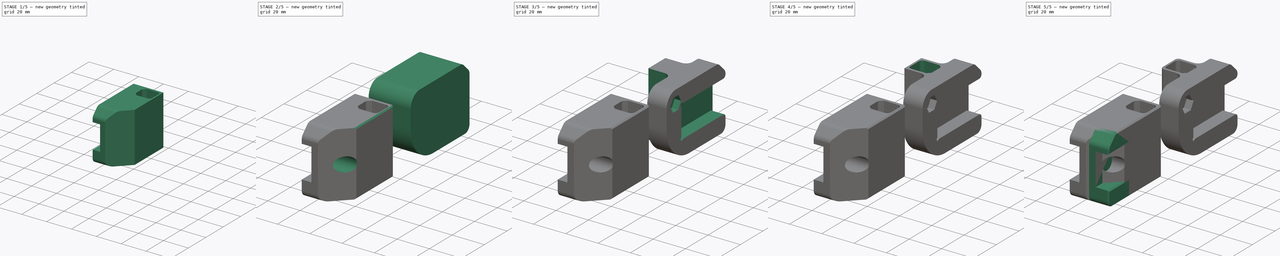
[diagram: build sequence overview — one tinted view per stage of 5, left to right]
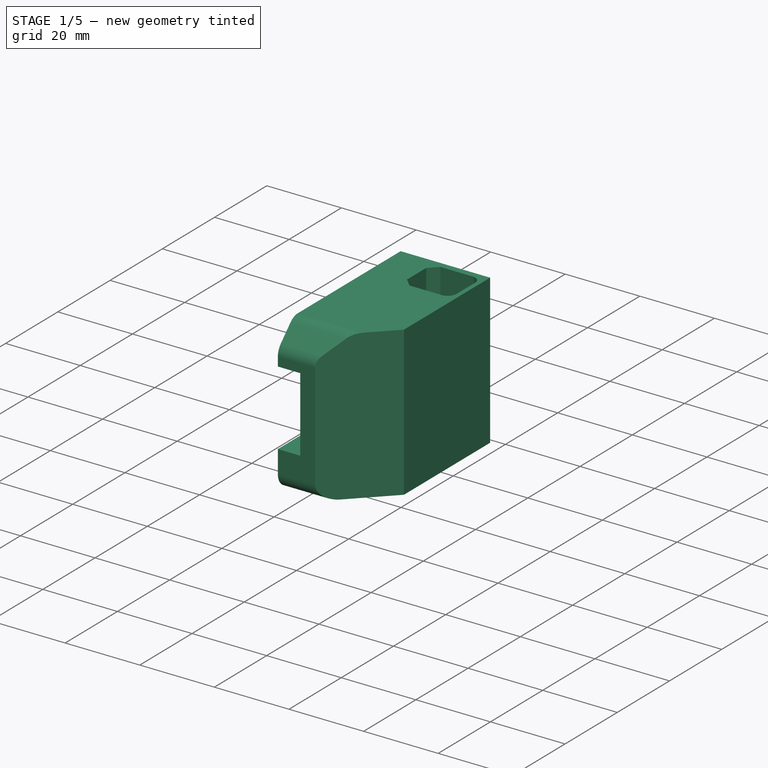
[diagram: stage 1 of 5 — iso view after this stage's code; geometry added in this stage tinted green]
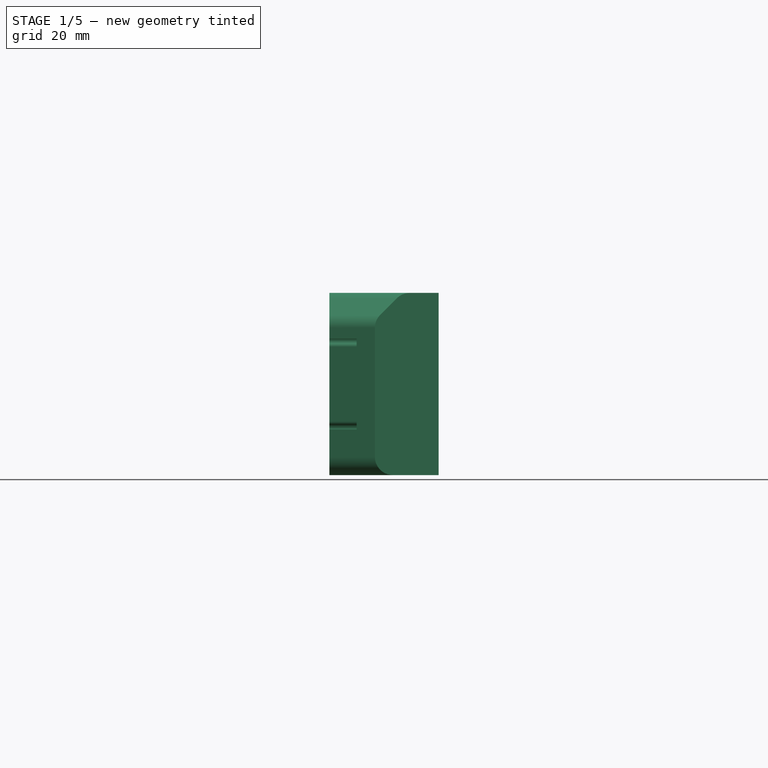
[diagram: stage 1 of 5 — front view after this stage's code; geometry added in this stage tinted green]
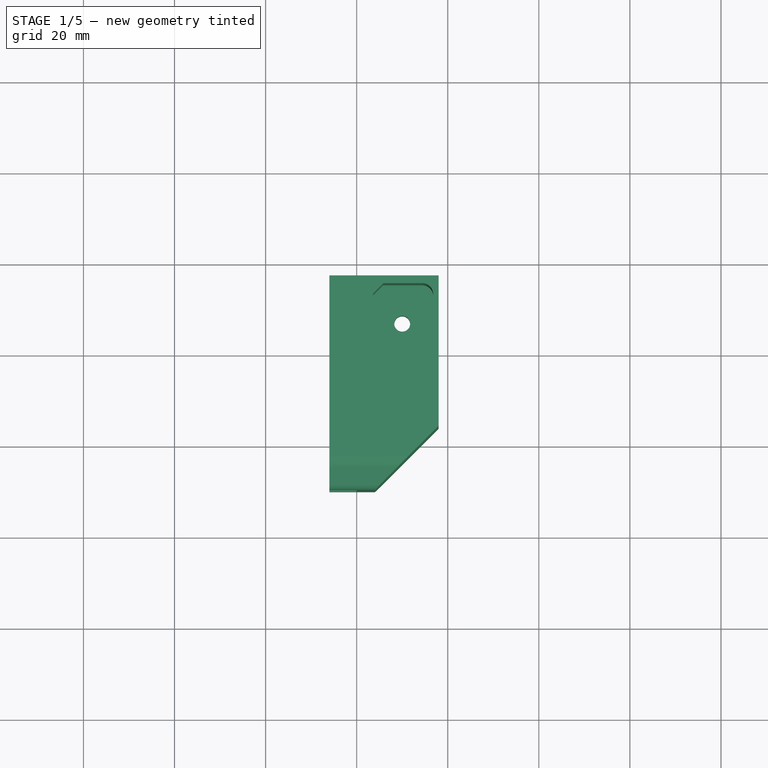
[diagram: stage 1 of 5 — top view after this stage's code; geometry added in this stage tinted green]
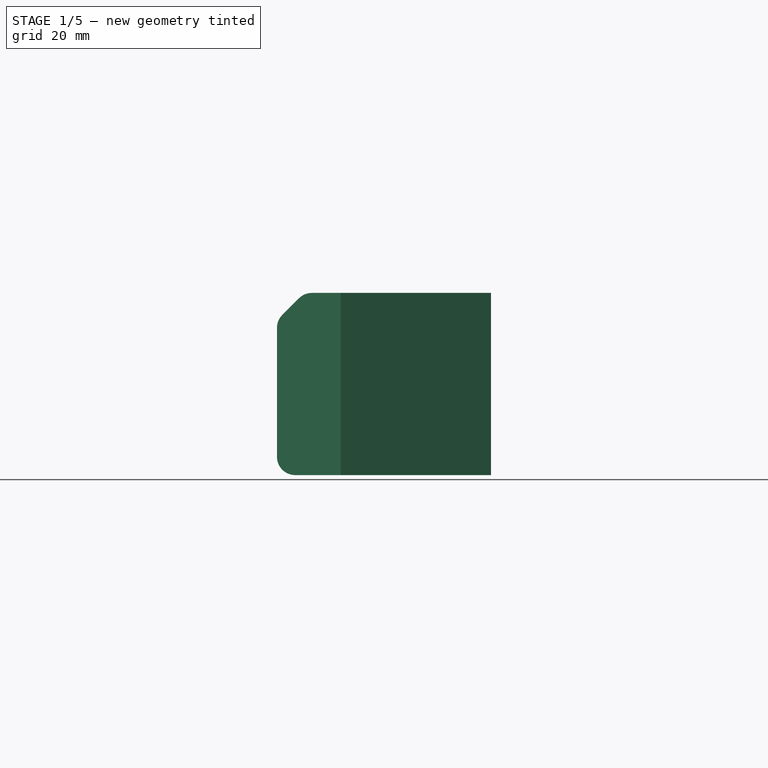
[diagram: stage 1 of 5 — right view after this stage's code; geometry added in this stage tinted green]
FCSTD DOCUMENT  (FreeCAD 1.0R39109 (Git))
Label: z-carriages
License: All rights reserved
LicenseURL: http://en.wikipedia.org/wiki/All_rights_reserved
objects: Sketcher::SketchObject×30, PartDesign::Pocket×22, App::Link×4, PartDesign::Pad×3, PartDesign::Chamfer×3, PartDesign::Body×3, App::Part×2, PartDesign::AdditiveLoft×1, PartDesign::Mirrored×1, Spreadsheet::Sheet×1, PartDesign::Groove×1, PartDesign::Fillet×1, PartDesign::SubtractivePipe×1
note: 161 computed .brp shape members not serialized (recipe doc carries the construction recipe); baked Part::Feature solids carry a one-line shape summary decoded from their .brp
EXTERNAL_REF file=../belt-clip.FCStd obj=Body102
EXTERNAL_REF file=../belt-clip.FCStd obj=Body103
EXTERNAL_REF file=../standard-stuff.FCStd obj=Body033

FEATURE [PartDesign::Body] Body154  label="z-carriage-back-left"
  AllowCompound = false
  Group = -> [Sketch303,Pad074,Sketch304,Pocket191,Sketch305,Pocket192,Sketch306,Pocket193,Chamfer019]
  Origin = -> Origin295
  Tip = -> Chamfer019
FEATURE [Sketcher::SketchObject] Sketch139
  ArcFitTolerance = 0
  AttachmentSupport = -> [YZ_Plane233]
  FullyConstrained = true
  MakeInternals = false
  MapMode = 5
  Placement = pos=(0,0,0) rot=(0.57735,0.57735,0.57735;2.0944rad)
  sketch-geometry (16):
    g0: LineSegment StartX=-30 StartY=8.17157 StartZ=0 EndX=-30 EndY=-8.17157 EndZ=0
    g1: LineSegment StartX=-31.8284 StartY=-10 StartZ=0 EndX=-50 EndY=-10 EndZ=0
    g2: LineSegment StartX=-50 StartY=10 StartZ=0 EndX=-31.8284 EndY=10 EndZ=0
    g3: ArcOfCircle CenterX=-29 CenterY=8.17157 CenterZ=0 NormalX=0 NormalY=0 NormalZ=1 AngleXU=0 Radius=1 StartAngle=2.35619 EndAngle=3.14159
    g4: ArcOfCircle CenterX=-30.4142 CenterY=9.58579 CenterZ=0 NormalX=0 NormalY=0 NormalZ=1 AngleXU=0 Radius=1 StartAngle=5.49779 EndAngle=8.63938
    g5: ArcOfCircle CenterX=-31.8284 CenterY=11 CenterZ=0 NormalX=0 NormalY=0 NormalZ=1 AngleXU=0 Radius=1 StartAngle=4.71239 EndAngle=5.49779
    g6: GeomPoint [constr] X=-30 Y=10 Z=0
    g7: LineSegment [constr] StartX=-30.4142 StartY=9.58579 StartZ=0 EndX=-30 EndY=10 EndZ=0
    g8: LineSegment [constr] StartX=-29.7071 StartY=8.87868 StartZ=0 EndX=-31.1213 EndY=10.2929 EndZ=0
    g9: GeomPoint [constr] X=-30 Y=-10 Z=0
    g10: ArcOfCircle CenterX=-29 CenterY=-8.17157 CenterZ=0 NormalX=0 NormalY=0 NormalZ=1 AngleXU=0 Radius=1 StartAngle=3.14159 EndAngle=3.92699
    g11: ArcOfCircle CenterX=-30.4142 CenterY=-9.58579 CenterZ=0 NormalX=0 NormalY=0 NormalZ=1 AngleXU=0 Radius=1 StartAngle=3.92699 EndAngle=7.06858
    g12: ArcOfCircle CenterX=-31.8284 CenterY=-11 CenterZ=0 NormalX=0 NormalY=0 NormalZ=1 AngleXU=0 Radius=1 StartAngle=0.785398 EndAngle=1.5708
    g13: LineSegment [constr] StartX=-30.4142 StartY=-9.58579 StartZ=0 EndX=-30 EndY=-10 EndZ=0
    g14: LineSegment [constr] StartX=-31.1213 StartY=-10.2929 StartZ=0 EndX=-29.7071 EndY=-8.87868 EndZ=0
    g15: LineSegment StartX=-50 StartY=10 StartZ=0 EndX=-50 EndY=-10 EndZ=0
  constraints (39):
    c: Horizontal(g1)
    c: Horizontal(g2)
    c: Tangent(g3,g0) = -1.5708
    c: Tangent(g4,g3) = 1.5708
    c: Tangent(g5,g4) = 1.5708
    c: Tangent(g5,g2) = -1.5708
    c: Coincident(g7,g4)
    c: Coincident(g7,g6)
    c: Angle(g7) = 0.785398
    c: Equal(g3,g4)
    c: Equal(g4,g5)
    c: Coincident(g8,g3)
    c: Coincident(g8,g4)
    c: PointOnObject(g4,g8)
    c: Radius(g4) = 1
    c: DistanceY(g6) = 10
    c: Tangent(g12,g1) = -1.5708
    c: Tangent(g12,g11) = 1.5708
    c: Tangent(g11,g10) = 1.5708
    c: Tangent(g10,g0) = -1.5708
    c: Equal(g10,g11)
    c: Equal(g11,g12)
    c: Equal(g12,g4)
    c: Coincident(g13,g11)
    c: Coincident(g13,g9)
    c: Perpendicular(g7,g13)
    c: Coincident(g14,g11)
    c: Coincident(g14,g10)
    c: PointOnObject(g11,g14)
    c: Coincident(g15,g2)
    c: Coincident(g15,g1)
    c: Vertical(g15)
    c: Vertical(g0)
    c: Perpendicular(g14,g13)
    c: Symmetric(g9,g6,g-1)
    c: Perpendicular(g8,g7)
    c: PointOnObject(g9,g1)
    c: DistanceX(g0) = -30
    c: DistanceX(g1,g9) = 20
FEATURE [Sketcher::SketchObject] Sketch140
  ArcFitTolerance = 0
  AttachmentSupport = -> [YZ_Plane233]
  FullyConstrained = true
  MakeInternals = false
  MapMode = 5
  Placement = pos=(0,0,0) rot=(0.57735,0.57735,0.57735;2.0944rad)
  sketch-geometry (21):
    g0: GeomPoint [constr] X=-3 Y=0 Z=0
    g1: Circle [constr] CenterX=-3 CenterY=0 CenterZ=0 NormalX=0 NormalY=0 NormalZ=1 AngleXU=0 Radius=6.1
    g2: GeomPoint [constr] X=-9.1 Y=0 Z=0
    g3: LineSegment [constr] StartX=-9.85 StartY=20 StartZ=0 EndX=-8.1 EndY=20 EndZ=0
    g4: LineSegment [constr] StartX=-8.1 StartY=20 StartZ=0 EndX=-8.1 EndY=-20 EndZ=0
    g5: LineSegment [constr] StartX=-8.1 StartY=-20 StartZ=0 EndX=-9.85 EndY=-20 EndZ=0
    g6: LineSegment [constr] StartX=-9.85 StartY=-20 StartZ=0 EndX=-9.85 EndY=20 EndZ=0
    g7: GeomPoint [constr] X=-9.85 Y=0 Z=0
    g8: GeomPoint [constr] X=-8.1 Y=0 Z=0
    g9: LineSegment StartX=-50 StartY=-16 StartZ=0 EndX=-50 EndY=12.3431 EndZ=0
    g10: LineSegment StartX=-48.8284 StartY=15.1716 StartZ=0 EndX=-45.1716 EndY=18.8284 EndZ=0
    g11: LineSegment StartX=-42.3431 StartY=20 StartZ=0 EndX=-3 EndY=20 EndZ=0
    g12: LineSegment StartX=-3 StartY=20 StartZ=0 EndX=-3 EndY=-20 EndZ=0
    g13: LineSegment StartX=-3 StartY=-20 StartZ=0 EndX=-46 EndY=-20 EndZ=0
    g14: ArcOfCircle CenterX=-46 CenterY=-16 CenterZ=0 NormalX=0 NormalY=0 NormalZ=1 AngleXU=0 Radius=4 StartAngle=3.14159 EndAngle=4.71239
    g15: GeomPoint [constr] X=-50 Y=-20 Z=0
    g16: ArcOfCircle CenterX=-46 CenterY=12.3431 CenterZ=0 NormalX=0 NormalY=0 NormalZ=1 AngleXU=0 Radius=4 StartAngle=2.35619 EndAngle=3.14159
    g17: GeomPoint [constr] X=-50 Y=14 Z=0
    g18: ArcOfCircle CenterX=-42.3431 CenterY=16 CenterZ=0 NormalX=0 NormalY=0 NormalZ=1 AngleXU=0 Radius=4 StartAngle=1.5708 EndAngle=2.35619
    g19: GeomPoint [constr] X=-44 Y=20 Z=0
    g20: GeomPoint X=-20 Y=-20 Z=0
  constraints (51):
    c: PointOnObject(g0,g-1)
    c: Coincident(g1,g0)
    c: Diameter(g1) = 12.2
    c: PointOnObject(g2,g1)
    c: PointOnObject(g2,g-1)
    c: Coincident(g3,g4)
    c: Coincident(g4,g5)
    c: Coincident(g5,g6)
    c: Coincident(g6,g3)
    c: Horizontal(g3)
    c: Horizontal(g5)
    c: Vertical(g4)
    c: PointOnObject(g7,g6)
    c: PointOnObject(g8,g4)
    c: PointOnObject(g7,g-1)
    c: PointOnObject(g8,g-1)
    c: DistanceX(g7,g2) = 0.75
    c: DistanceX(g2,g8) = 1
    c: Horizontal(g11)
    c: Coincident(g12,g11)
    c: Coincident(g13,g12)
    c: Horizontal(g13)
    c: DistanceY(g17) = 14
    c: DistanceY(g15) = -20
    c: PointOnObject(g15,g9)
    c: PointOnObject(g15,g13)
    c: Tangent(g9,g14) = 1.5708
    c: Tangent(g13,g14) = 1.5708
    c: Radius(g14) = 4
    c: Vertical(g9)
    c: DistanceY(g19) = 20
    c: Angle(g10) = 0.785398
    c: PointOnObject(g17,g9)
    c: PointOnObject(g17,g10)
    c: Tangent(g9,g16) = 1.5708
    c: Tangent(g10,g16) = 1.5708
    c: PointOnObject(g19,g10)
    c: PointOnObject(g19,g11)
    c: Tangent(g10,g18) = 1.5708
    c: Tangent(g11,g18) = 1.5708
    c: Equal(g18,g16)
    c: Equal(g16,g14)
    c: Vertical(g12)
    c: PointOnObject(g3,g11)
    c: PointOnObject(g5,g13)
    c: Vertical(g6)
    c: PointOnObject(g0,g12)
    c: PointOnObject(g20,g13)
    c: DistanceX(g20,g12) = 17
    c: DistanceX(g15,g20) = 30
    c: DistanceX(g20) = -20
FEATURE [PartDesign::Pad] Pad043
  Direction = (1,0,0)
  Length = 6
  Length2 = 18
  Placement = pos=(0,0,0) rot=(1,1,1;2.0944rad)
  Profile = -> Sketch140
  ReferenceAxis = -> Sketch140 [N_Axis]
  Reversed = true
  Suppressed = false
  Type = 4
FEATURE [PartDesign::Pocket] Pocket072
  BaseFeature = -> Pad043
  Direction = (-1,0,0)
  Length = 5
  Length2 = 5
  Placement = pos=(0,0,0) rot=(1,1,1;2.0944rad)
  Profile = -> Sketch139
  ReferenceAxis = -> Sketch139 [N_Axis]
  Suppressed = false
  Type = 1
FEATURE [Sketcher::SketchObject] Sketch320
  ArcFitTolerance = 0
  AttachmentSupport = -> [XY_Plane233]
  FullyConstrained = true
  MakeInternals = false
  MapMode = 5
  sketch-geometry (3):
    g0: LineSegment StartX=18 StartY=-50 StartZ=0 EndX=18 EndY=-36 EndZ=0
    g1: LineSegment StartX=18 StartY=-36 StartZ=0 EndX=4 EndY=-50 EndZ=0
    g2: LineSegment StartX=4 StartY=-50 StartZ=0 EndX=18 EndY=-50 EndZ=0
  constraints (9):
    c: Vertical(g0)
    c: Coincident(g0,g1)
    c: Coincident(g1,g2)
    c: Coincident(g2,g0)
    c: Horizontal(g2)
    c: Equal(g0,g2)
    c: DistanceX(g0) = 18
    c: DistanceX(g1) = 4
    c: DistanceY(g1) = -50
FEATURE [PartDesign::Pocket] Pocket204
  BaseFeature = -> Pocket072
  Direction = (0,0,-1)
  Length = 5
  Length2 = 5
  Midplane = true
  Placement = pos=(0,0,0) rot=(1,1,1;2.0944rad)
  Profile = -> Sketch320
  ReferenceAxis = -> Sketch320 [N_Axis]
  Suppressed = false
  Type = 1
FEATURE [Sketcher::SketchObject] Sketch321
  ArcFitTolerance = 0
  AttachmentOffset = pos=(0,0,-8) rot=(0,0,1;0rad)
  AttachmentSupport = -> [XY_Plane233]
  FullyConstrained = true
  MakeInternals = false
  MapMode = 5
  Placement = pos=(0,0,-8) rot=(0,0,1;0rad)
  sketch-geometry (21):
    g0: LineSegment StartX=5.83431 StartY=-4.7 StartZ=0 EndX=14.4 EndY=-4.7 EndZ=0
    g1: LineSegment StartX=5.83431 StartY=-16.5 StartZ=0 EndX=14.4 EndY=-16.5 EndZ=0
    g2: LineSegment StartX=16.8 StartY=-14.1 StartZ=0 EndX=16.8 EndY=-7.1 EndZ=0
    g3: LineSegment StartX=5.83431 StartY=-4.7 StartZ=0 EndX=3.6 EndY=-6.93431 EndZ=0
    g4: LineSegment StartX=3.6 StartY=-6.93431 StartZ=0 EndX=3.6 EndY=-14.2657 EndZ=0
    g5: LineSegment StartX=3.6 StartY=-14.2657 StartZ=0 EndX=5.83431 EndY=-16.5 EndZ=0
    g6: LineSegment [constr] StartX=14.4 StartY=-16.1 StartZ=0 EndX=6 EndY=-16.1 EndZ=0
    g7: LineSegment [constr] StartX=6 StartY=-16.1 StartZ=0 EndX=4 EndY=-14.1 EndZ=0
    g8: LineSegment [constr] StartX=4 StartY=-14.1 StartZ=0 EndX=4 EndY=-7.1 EndZ=0
    g9: LineSegment [constr] StartX=4 StartY=-7.1 StartZ=0 EndX=6 EndY=-5.1 EndZ=0
    g10: LineSegment [constr] StartX=6 StartY=-5.1 StartZ=0 EndX=14.4 EndY=-5.1 EndZ=0
    g11: GeomPoint [constr] X=10 Y=-13.1 Z=0
    g12: LineSegment [constr] StartX=16.4 StartY=-14.1 StartZ=0 EndX=16.4 EndY=-7.1 EndZ=0
    g13: ArcOfCircle [constr] CenterX=14.4 CenterY=-7.1 CenterZ=0 NormalX=0 NormalY=0 NormalZ=1 AngleXU=0 Radius=2 StartAngle=2e-16 EndAngle=1.5708
    g14: ArcOfCircle [constr] CenterX=14.4 CenterY=-14.1 CenterZ=0 NormalX=0 NormalY=0 NormalZ=1 AngleXU=0 Radius=2 StartAngle=4.71239 EndAngle=6.28319
    g15: ArcOfCircle CenterX=14.4 CenterY=-14.1 CenterZ=0 NormalX=0 NormalY=0 NormalZ=1 AngleXU=0 Radius=2.4 StartAngle=4.71239 EndAngle=6.28319
    g16: ArcOfCircle CenterX=14.4 CenterY=-7.1 CenterZ=0 NormalX=0 NormalY=0 NormalZ=1 AngleXU=0 Radius=2.4 StartAngle=1e-16 EndAngle=1.5708
    g17: LineSegment [constr] StartX=10.2 StartY=-5.1 StartZ=0 EndX=10.2 EndY=-4.7 EndZ=0
    g18: LineSegment [constr] StartX=3.6 StartY=-10.6 StartZ=0 EndX=4 EndY=-10.6 EndZ=0
    g19: LineSegment [constr] StartX=3.6 StartY=-10.6 StartZ=0 EndX=16.8 EndY=-10.6 EndZ=0
    g20: LineSegment [constr] StartX=5 StartY=-6.1 StartZ=0 EndX=4.71716 EndY=-5.81716 EndZ=0
  constraints (55):
    c: Horizontal(g0)
    c: Horizontal(g1)
    c: Vertical(g2)
    c: Coincident(g3,g0)
    c: Coincident(g4,g3)
    c: Vertical(g4)
    c: Coincident(g5,g1)
    c: Coincident(g5,g4)
    c: Horizontal(g6)
    c: Coincident(g6,g7)
    c: Coincident(g7,g8)
    c: Vertical(g8)
    c: Coincident(g8,g9)
    c: Coincident(g9,g10)
    c: Horizontal(g10)
    c: Vertical(g12)
    c: Tangent(g14,g6) = 1.5708
    c: Tangent(g14,g12) = -1.5708
    c: Tangent(g13,g12) = -1.5708
    c: Tangent(g10,g13) = 1.5708
    c: Angle(g9) = 0.785398
    c: Perpendicular(g9,g7)
    c: Equal(g7,g9)
    c: DistanceY(g6,g9) = 11
    c: Radius(g13) = 2
    c: Equal(g13,g14)
    c: DistanceX(g9,g9) = 2
    c: DistanceX(g11,g12) = 6.4
    c: DistanceY(g6,g11) = 3
    c: DistanceX(g3,g8) = 0.4
    c: Parallel(g3,g9)
    c: Parallel(g5,g7)
    c: Coincident(g15,g14)
    c: Coincident(g16,g13)
    c: Tangent(g0,g16) = 1.5708
    c: Tangent(g16,g2) = -1.5708
    c: Tangent(g15,g2) = -1.5708
    c: Tangent(g15,g1) = -1.5708
    c: PointOnObject(g17,g0)
    c: Vertical(g17)
    c: Symmetric(g9,g10,g17)
    c: Horizontal(g18)
    c: Symmetric(g7,g8,g18)
    c: Equal(g18,g17)
    c: Coincident(g19,g18)
    c: PointOnObject(g19,g2)
    c: Horizontal(g19)
    c: Symmetric(g4,g3,g18)
    c: PointOnObject(g20,g3)
    c: Perpendicular(g9,g20)
    c: Symmetric(g8,g9,g20)
    c: Equal(g20,g18)
    c: DistanceY(g11) = -13.1
    c: DistanceX(g11) = 10
    c: DistanceX(g8,g11) = 6
FEATURE [PartDesign::Pocket] Pocket205
  BaseFeature = -> Pocket204
  Direction = (0,0,-1)
  Length = 5
  Length2 = 5
  Placement = pos=(0,0,0) rot=(1,1,1;2.0944rad)
  Profile = -> Sketch321
  ReferenceAxis = -> Sketch321 [N_Axis]
  Reversed = true
  Suppressed = false
  Type = 1
FEATURE [Sketcher::SketchObject] Sketch322
  ArcFitTolerance = 0
  AttachmentOffset = pos=(-20,0,13.5) rot=(0,0,1;0rad)
  AttachmentSupport = -> [YZ_Plane233]
  FullyConstrained = true
  MakeInternals = false
  MapMode = 5
  Placement = pos=(13.5,-20,0) rot=(0.57735,0.57735,0.57735;2.0944rad)
  sketch-geometry (30):
    g0: GeomPoint [constr] X=10.9 Y=-20 Z=0
    g1: GeomPoint [constr] X=17 Y=0 Z=0
    g2: LineSegment StartX=9.9 StartY=-20 StartZ=0 EndX=10.9 EndY=-20 EndZ=0
    g3: LineSegment StartX=10.9 StartY=-20 StartZ=0 EndX=10.9 EndY=-19 EndZ=0
    g4: LineSegment StartX=10.9 StartY=-19 StartZ=0 EndX=11.9 EndY=-19 EndZ=0
    g5: LineSegment StartX=11.9 StartY=-19 StartZ=0 EndX=11.9 EndY=-18 EndZ=0
    g6: LineSegment StartX=11.9 StartY=-18 StartZ=0 EndX=10.9 EndY=-18 EndZ=0
    g7: LineSegment StartX=10.9 StartY=-18 StartZ=0 EndX=10.9 EndY=-17 EndZ=0
    g8: LineSegment StartX=10.9 StartY=-17 StartZ=0 EndX=11.9 EndY=-17 EndZ=0
    g9: LineSegment StartX=11.9 StartY=-17 StartZ=0 EndX=11.9 EndY=-16 EndZ=0
    g10: LineSegment StartX=11.9 StartY=-16 StartZ=0 EndX=10.9 EndY=-16 EndZ=0
    g11: LineSegment StartX=10.9 StartY=-16 StartZ=0 EndX=10.9 EndY=-15 EndZ=0
    g12: LineSegment StartX=10.9 StartY=-15 StartZ=0 EndX=11.9 EndY=-15 EndZ=0
    g13: LineSegment StartX=11.9 StartY=-15 StartZ=0 EndX=11.9 EndY=-14 EndZ=0
    g14: LineSegment StartX=9.9 StartY=-20 StartZ=0 EndX=9.9 EndY=-13 EndZ=0
    g15: LineSegment StartX=9.9 StartY=-13 StartZ=0 EndX=18.9 EndY=-13 EndZ=0
    g16: LineSegment StartX=11.9 StartY=-14 StartZ=0 EndX=12.9 EndY=-14 EndZ=0
    g17: LineSegment StartX=12.9 StartY=-14 StartZ=0 EndX=12.9 EndY=-15 EndZ=0
    g18: LineSegment StartX=12.9 StartY=-15 StartZ=0 EndX=13.9 EndY=-15 EndZ=0
    g19: LineSegment StartX=13.9 StartY=-15 StartZ=0 EndX=13.9 EndY=-14 EndZ=0
    g20: LineSegment StartX=13.9 StartY=-14 StartZ=0 EndX=14.9 EndY=-14 EndZ=0
    g21: LineSegment StartX=14.9 StartY=-14 StartZ=0 EndX=14.9 EndY=-15 EndZ=0
    g22: LineSegment StartX=14.9 StartY=-15 StartZ=0 EndX=15.9 EndY=-15 EndZ=0
    g23: LineSegment StartX=15.9 StartY=-15 StartZ=0 EndX=15.9 EndY=-14 EndZ=0
    g24: LineSegment StartX=15.9 StartY=-14 StartZ=0 EndX=16.9 EndY=-14 EndZ=0
    g25: LineSegment StartX=16.9 StartY=-14 StartZ=0 EndX=16.9 EndY=-15 EndZ=0
    g26: LineSegment StartX=16.9 StartY=-15 StartZ=0 EndX=17.9 EndY=-15 EndZ=0
    g27: LineSegment StartX=17.9 StartY=-15 StartZ=0 EndX=17.9 EndY=-14 EndZ=0
    g28: LineSegment StartX=17.9 StartY=-14 StartZ=0 EndX=18.9 EndY=-14 EndZ=0
    g29: LineSegment StartX=18.9 StartY=-14 StartZ=0 EndX=18.9 EndY=-13 EndZ=0
  constraints (87):
    c: DistanceY(g2) = -20
    c: PointOnObject(g1,g-1)
    c: DistanceX(g1) = 17
    c: DistanceX(g0,g1) = 6.1
    c: Horizontal(g2,g0)
    c: Coincident(g2,g0)
    c: Coincident(g2,g3)
    c: Coincident(g3,g4)
    c: Horizontal(g4)
    c: Coincident(g4,g5)
    c: Vertical(g5)
    c: Coincident(g5,g6)
    c: Coincident(g6,g7)
    c: Vertical(g7)
    c: Coincident(g7,g8)
    c: Horizontal(g8)
    c: Coincident(g8,g9)
    c: Vertical(g9)
    c: Coincident(g9,g10)
    c: Horizontal(g10)
    c: Coincident(g10,g11)
    c: Vertical(g11)
    c: Coincident(g11,g12)
    c: Horizontal(g12)
    c: Coincident(g12,g13)
    c: Vertical(g13)
    c: Horizontal(g6)
    c: Vertical(g3)
    c: Vertical(g3,g7)
    c: Vertical(g7,g11)
    c: Vertical(g12,g8)
    c: Vertical(g8,g4)
    c: Equal(g3,g5)
    c: Equal(g5,g7)
    c: Equal(g7,g9)
    c: Equal(g9,g11)
    c: Equal(g11,g13)
    c: DistanceY(g2,g5) = 2
    c: DistanceX(g2,g2) = 1
    c: DistanceX(g4,g4) = 1
    c: Coincident(g2,g14)
    c: Vertical(g14)
    c: Coincident(g14,g15)
    c: Horizontal(g15)
    c: Coincident(g13,g16)
    c: Horizontal(g16)
    c: Coincident(g16,g17)
    c: Vertical(g17)
    c: Coincident(g17,g18)
    c: Horizontal(g18)
    c: Coincident(g18,g19)
    c: Vertical(g19)
    c: Coincident(g19,g20)
    c: Horizontal(g20)
    c: Coincident(g20,g21)
    c: Vertical(g21)
    c: Coincident(g21,g22)
    c: Horizontal(g22)
    c: Coincident(g22,g23)
    c: Vertical(g23)
    c: Coincident(g23,g24)
    c: Horizontal(g24)
    c: Coincident(g24,g25)
    c: Vertical(g25)
    c: Coincident(g25,g26)
    c: Horizontal(g26)
    c: Coincident(g26,g27)
    c: Vertical(g27)
    c: Coincident(g27,g28)
    c: Horizontal(g28)
    c: Coincident(g28,g29)
    c: Vertical(g29)
    c: Coincident(g15,g29)
    c: Horizontal(g12,g17)
    c: Horizontal(g17,g21)
    c: Horizontal(g21,g25)
    c: Horizontal(g16,g20)
    c: Horizontal(g20,g24)
    c: Horizontal(g24,g28)
    c: Equal(g18,g22)
    c: Equal(g22,g26)
    c: Equal(g26,g9)
    c: Equal(g24,g28)
    c: Equal(g28,g20)
    c: Equal(g20,g16)
    c: Equal(g16,g11)
    c: Equal(g29,g2)
FEATURE [PartDesign::Pocket] Pocket206
  BaseFeature = -> Pocket205
  Direction = (-1,0,0)
  Length = 8
  Length2 = 5
  Placement = pos=(0,0,0) rot=(1,1,1;2.0944rad)
  Profile = -> Sketch322
  ReferenceAxis = -> Sketch322 [N_Axis]
  Suppressed = false
  Type = 0
FEATURE [Sketcher::SketchObject] Sketch323
  ArcFitTolerance = 0
  AttachmentSupport = -> [XY_Plane233]
  FullyConstrained = true
  MakeInternals = false
  MapMode = 5
  sketch-geometry (1):
    g0: Circle CenterX=10 CenterY=-13.1 CenterZ=0 NormalX=0 NormalY=0 NormalZ=1 AngleXU=0 Radius=1.75
  constraints (3):
    c: Diameter(g0) = 3.5
    c: DistanceX(g0) = 10
    c: DistanceY(g0) = -13.1
FEATURE [PartDesign::Pocket] Pocket207
  BaseFeature = -> Pocket206
  Direction = (0,0,-1)
  Length = 5
  Length2 = 5
  Midplane = true
  Placement = pos=(0,0,0) rot=(1,1,1;2.0944rad)
  Profile = -> Sketch323
  ReferenceAxis = -> Sketch323 [N_Axis]
  Suppressed = false
  Type = 1
FEATURE [Sketcher::SketchObject] Sketch324
  ArcFitTolerance = 0
  AttachmentOffset = pos=(0,0,-9) rot=(0,0,1;0rad)
  AttachmentSupport = -> [XY_Plane233]
  FullyConstrained = true
  MakeInternals = false
  MapMode = 5
  Placement = pos=(0,0,-9) rot=(0,0,1;0rad)
  sketch-geometry (10):
    g0: LineSegment StartX=12.75 StartY=-14.6877 StartZ=0 EndX=12.75 EndY=-11.5123 EndZ=0
    g1: LineSegment [constr] StartX=12.75 StartY=-11.5123 StartZ=0 EndX=10 EndY=-9.92457 EndZ=0
    g2: LineSegment [constr] StartX=10 StartY=-9.92457 StartZ=0 EndX=7.25 EndY=-11.5123 EndZ=0
    g3: LineSegment StartX=7.25 StartY=-11.5123 StartZ=0 EndX=7.25 EndY=-14.6877 EndZ=0
    g4: LineSegment StartX=7.25 StartY=-14.6877 StartZ=0 EndX=10 EndY=-16.2754 EndZ=0
    g5: LineSegment StartX=10 StartY=-16.2754 StartZ=0 EndX=12.75 EndY=-14.6877 EndZ=0
    g6: Circle [constr] CenterX=10 CenterY=-13.1 CenterZ=0 NormalX=0 NormalY=0 NormalZ=1 AngleXU=0 Radius=3.17543
    g7: LineSegment StartX=12.75 StartY=-11.5123 StartZ=0 EndX=12.75 EndY=17 EndZ=0
    g8: LineSegment StartX=12.75 StartY=17 StartZ=0 EndX=7.25 EndY=17 EndZ=0
    g9: LineSegment StartX=7.25 StartY=17 StartZ=0 EndX=7.25 EndY=-11.5123 EndZ=0
  constraints (25):
    c: Coincident(g0,g1)
    c: Coincident(g1,g2)
    c: Coincident(g2,g3)
    c: Coincident(g3,g4)
    c: Coincident(g4,g5)
    c: Coincident(g5,g0)
    c: Equal(g0, g1-g5) x5
    c: PointOnObject(g0,g6)
    c: PointOnObject(g1,g6)
    c: PointOnObject(g2,g6)
    c: PointOnObject(g3,g6)
    c: PointOnObject(g4,g6)
    c: PointOnObject(g5,g6)
    c: DistanceX(g6) = 10
    c: DistanceY(g6) = -13.1
    c: Vertical(g0)
    c: DistanceX(g2,g0) = 5.5
    c: Coincident(g0,g7)
    c: Vertical(g7)
    c: Coincident(g7,g8)
    c: Horizontal(g8)
    c: Coincident(g8,g9)
    c: Coincident(g9,g2)
    c: Vertical(g9)
    c: DistanceY(g7) = 17
FEATURE [PartDesign::Pocket] Pocket208
  BaseFeature = -> Pocket207
  Direction = (0,0,-1)
  Length = 3
  Length2 = 5
  Placement = pos=(0,0,0) rot=(1,1,1;2.0944rad)
  Profile = -> Sketch324
  ReferenceAxis = -> Sketch324 [N_Axis]
  Suppressed = false
  Type = 0
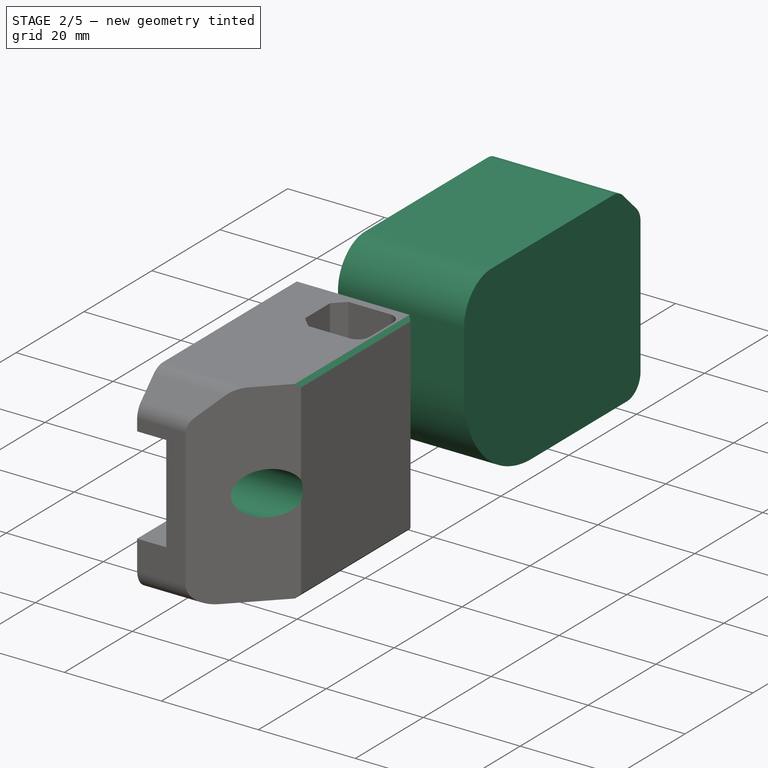
[diagram: stage 2 of 5 — iso view after this stage's code; geometry added in this stage tinted green]
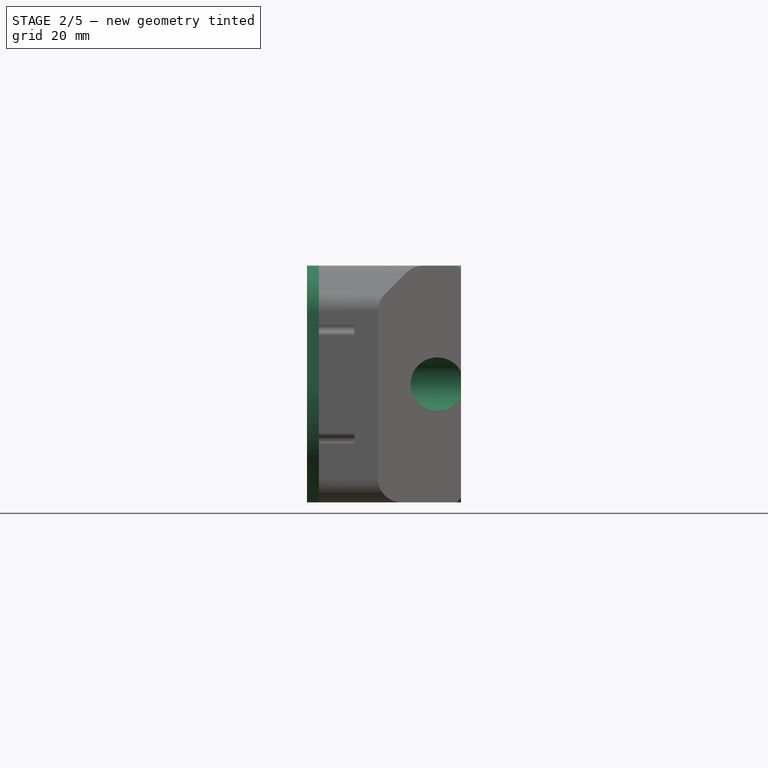
[diagram: stage 2 of 5 — front view after this stage's code; geometry added in this stage tinted green]
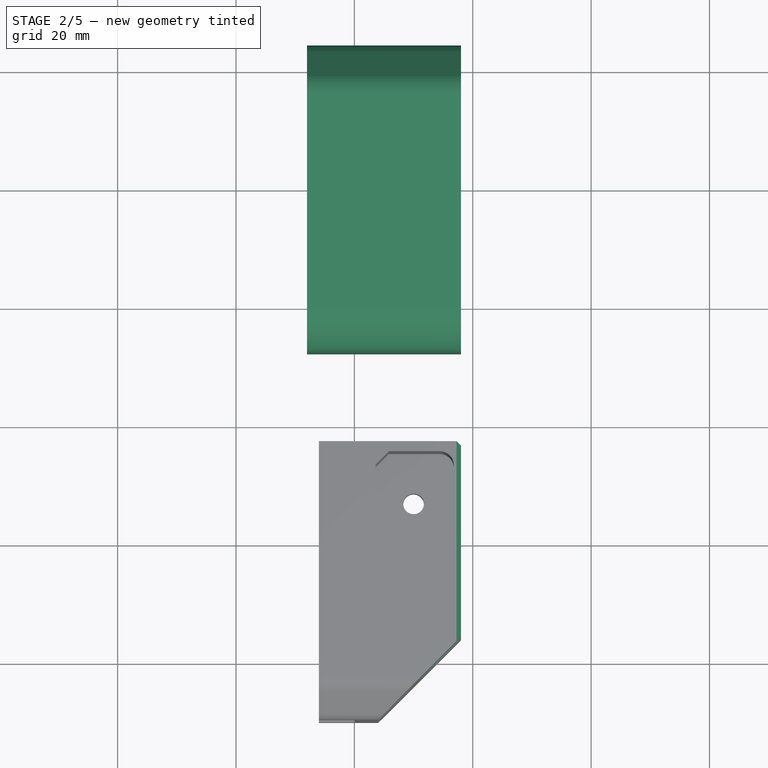
[diagram: stage 2 of 5 — top view after this stage's code; geometry added in this stage tinted green]
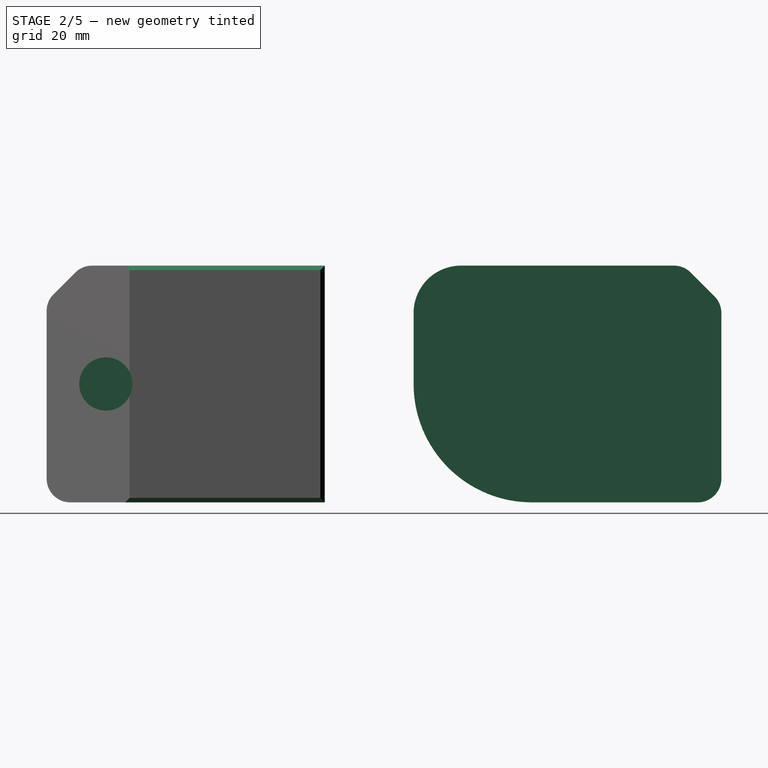
[diagram: stage 2 of 5 — right view after this stage's code; geometry added in this stage tinted green]
FEATURE [Sketcher::SketchObject] Sketch051
  ArcFitTolerance = 0
  AttachmentOffset = pos=(0,0,6) rot=(0,0,1;0rad)
  AttachmentSupport = -> [YZ_Plane050]
  FullyConstrained = true
  MakeInternals = false
  MapMode = 5
  Placement = pos=(6,0,0) rot=(0.57735,0.57735,0.57735;2.0944rad)
  sketch-geometry (1):
    g0: Circle CenterX=20 CenterY=12 CenterZ=0 NormalX=0 NormalY=0 NormalZ=1 AngleXU=0 Radius=5
  constraints (3):
    c: DistanceY(g0) = 12
    c: DistanceX(g0) = 20
    c: Diameter(g0) = 10
FEATURE [Sketcher::SketchObject] Sketch052
  ArcFitTolerance = 0
  AttachmentOffset = pos=(0,0,5.4) rot=(0,0,1;0rad)
  AttachmentSupport = -> [YZ_Plane050]
  FullyConstrained = true
  MakeInternals = false
  MapMode = 5
  Placement = pos=(5.4,0,0) rot=(0.57735,0.57735,0.57735;2.0944rad)
  expr: .AttachmentOffset.Base.z = Spreadsheet.v_wheel_width / 2
  sketch-geometry (1):
    g0: Circle CenterX=20 CenterY=12 CenterZ=0 NormalX=0 NormalY=0 NormalZ=1 AngleXU=0 Radius=4
  constraints (3):
    c: DistanceY(g0) = 12
    c: DistanceX(g0) = 20
    c: Diameter(g0) = 8
FEATURE [Sketcher::SketchObject] Sketch053
  ArcFitTolerance = 0
  AttachmentOffset = pos=(0,0,13.7) rot=(0,0,1;0rad)
  AttachmentSupport = -> [YZ_Plane050]
  FullyConstrained = true
  MakeInternals = false
  MapMode = 5
  Placement = pos=(13.7,0,0) rot=(0.57735,0.57735,0.57735;2.0944rad)
  sketch-geometry (1):
    g0: Circle CenterX=20 CenterY=12 CenterZ=0 NormalX=0 NormalY=0 NormalZ=1 AngleXU=0 Radius=2.75
  constraints (3):
    c: DistanceY(g0) = 12
    c: DistanceX(g0) = 20
    c: Diameter(g0) = 5.5
FEATURE [Sketcher::SketchObject] Sketch054
  ArcFitTolerance = 0
  AttachmentOffset = pos=(0,0,14) rot=(0,0,1;0rad)
  AttachmentSupport = -> [YZ_Plane050]
  FullyConstrained = true
  MakeInternals = false
  MapMode = 5
  Placement = pos=(14,0,0) rot=(0.57735,0.57735,0.57735;2.0944rad)
  sketch-geometry (7):
    g0: LineSegment StartX=24.7343 StartY=12 StartZ=0 EndX=22.3671 EndY=16.1 EndZ=0
    g1: LineSegment StartX=22.3671 StartY=16.1 StartZ=0 EndX=17.6329 EndY=16.1 EndZ=0
    g2: LineSegment StartX=17.6329 StartY=16.1 StartZ=0 EndX=15.2657 EndY=12 EndZ=0
    g3: LineSegment StartX=15.2657 StartY=12 StartZ=0 EndX=17.6329 EndY=7.9 EndZ=0
    g4: LineSegment StartX=17.6329 StartY=7.9 StartZ=0 EndX=22.3671 EndY=7.9 EndZ=0
    g5: LineSegment StartX=22.3671 StartY=7.9 StartZ=0 EndX=24.7343 EndY=12 EndZ=0
    g6: Circle [constr] CenterX=20 CenterY=12 CenterZ=0 NormalX=0 NormalY=0 NormalZ=1 AngleXU=0 Radius=4.73427
  constraints (17):
    c: Coincident(g0,g1)
    c: Coincident(g1,g2)
    c: Coincident(g2,g3)
    c: Coincident(g3,g4)
    c: Coincident(g4,g5)
    c: Coincident(g5,g0)
    c: Equal(g0, g1-g5) x5
    c: PointOnObject(g0,g6)
    c: PointOnObject(g1,g6)
    c: PointOnObject(g2,g6)
    c: PointOnObject(g3,g6)
    c: PointOnObject(g4,g6)
    c: PointOnObject(g5,g6)
    c: Horizontal(g1)
    c: DistanceY(g4,g0) = 8.2
    c: DistanceY(g6) = 12
    c: DistanceX(g6) = 20
FEATURE [Sketcher::SketchObject] Sketch154
  ArcFitTolerance = 0
  AttachmentSupport = -> [YZ_Plane050]
  FullyConstrained = true
  MakeInternals = false
  MapMode = 5
  Placement = pos=(0,0,0) rot=(0.57735,0.57735,0.57735;2.0944rad)
  sketch-geometry (12):
    g0: ArcOfCircle CenterX=20 CenterY=12 CenterZ=0 NormalX=0 NormalY=0 NormalZ=1 AngleXU=0 Radius=8 StartAngle=1.5708 EndAngle=3.14159
    g1: ArcOfCircle CenterX=32 CenterY=0 CenterZ=0 NormalX=0 NormalY=0 NormalZ=1 AngleXU=0 Radius=20 StartAngle=3.14159 EndAngle=4.71239
    g2: LineSegment StartX=12 StartY=12 StartZ=0 EndX=12 EndY=1.8e-15 EndZ=0
    g3: LineSegment StartX=32 StartY=-20 StartZ=0 EndX=60 EndY=-20 EndZ=0
    g4: LineSegment StartX=64 StartY=12 StartZ=0 EndX=64 EndY=-16 EndZ=0
    g5: ArcOfCircle CenterX=60 CenterY=-16 CenterZ=0 NormalX=0 NormalY=0 NormalZ=1 AngleXU=0 Radius=4 StartAngle=4.71239 EndAngle=6.28319
    g6: GeomPoint [constr] X=64 Y=-20 Z=0
    g7: LineSegment StartX=20 StartY=20 StartZ=0 EndX=56 EndY=20 EndZ=0
    g8: GeomPoint [constr] X=20 Y=20 Z=0
    g9: LineSegment StartX=58.8284 StartY=18.8284 StartZ=0 EndX=62.8284 EndY=14.8284 EndZ=0
    g10: ArcOfCircle CenterX=56 CenterY=16 CenterZ=0 NormalX=0 NormalY=0 NormalZ=1 AngleXU=0 Radius=4 StartAngle=0.785398 EndAngle=1.5708
    g11: ArcOfCircle CenterX=60 CenterY=12 CenterZ=0 NormalX=0 NormalY=0 NormalZ=1 AngleXU=0 Radius=4 StartAngle=0 EndAngle=0.785398
  constraints (29):
    c: Vertical(g2)
    c: Horizontal(g3)
    c: Vertical(g4)
    c: Tangent(g2,g1) = -1.5708
    c: Tangent(g2,g0) = -1.5708
    c: PointOnObject(g6,g3)
    c: PointOnObject(g6,g4)
    c: Tangent(g3,g5) = -1.5708
    c: Tangent(g4,g5) = 1.5708
    c: DistanceX(g6) = 64
    c: Horizontal(g7)
    c: PointOnObject(g8,g0)
    c: Vertical(g8,g0)
    c: Radius(g5) = 4
    c: Tangent(g1,g3) = -1.5708
    c: DistanceY(g1) = -20
    c: DistanceY(g0) = 12
    c: DistanceX(g0) = 20
    c: Radius(g0) = 8
    c: Tangent(g7,g0) = 1.5708
    c: Tangent(g7,g10) = 1.5708
    c: Tangent(g9,g10) = 1.5708
    c: Tangent(g4,g11) = 1.5708
    c: Tangent(g9,g11) = 1.5708
    c: Equal(g11,g10)
    c: Equal(g10,g5)
    c: Angle(g9) = -0.785398
    c: DistanceY(g4) = 12
    c: PointOnObject(g1,g-1)
FEATURE [PartDesign::Pad] Pad046
  Direction = (1,0,0)
  Length = 18
  Length2 = 8
  Placement = pos=(0,0,0) rot=(1,1,1;2.0944rad)
  Profile = -> Sketch154
  ReferenceAxis = -> Sketch154 [N_Axis]
  Suppressed = false
  Type = 4
FEATURE [Sketcher::SketchObject] Sketch325
  ArcFitTolerance = 0
  AttachmentOffset = pos=(0,0,4) rot=(0,0,1;0rad)
  AttachmentSupport = -> [YZ_Plane233]
  FullyConstrained = true
  MakeInternals = false
  MapMode = 5
  Placement = pos=(4,0,0) rot=(0.57735,0.57735,0.57735;2.0944rad)
  sketch-geometry (1):
    g0: Circle CenterX=-40 CenterY=0 CenterZ=0 NormalX=0 NormalY=0 NormalZ=1 AngleXU=0 Radius=2.75
  constraints (3):
    c: PointOnObject(g0,g-1)
    c: Diameter(g0) = 5.5
    c: DistanceX(g0) = -40
FEATURE [PartDesign::Pocket] Pocket209
  BaseFeature = -> Pocket208
  Direction = (-1,0,0)
  Length = 5
  Length2 = 5
  Placement = pos=(0,0,0) rot=(1,1,1;2.0944rad)
  Profile = -> Sketch325
  ReferenceAxis = -> Sketch325 [N_Axis]
  Suppressed = false
  Type = 1
FEATURE [Sketcher::SketchObject] Sketch326
  ArcFitTolerance = 0
  AttachmentOffset = pos=(0,0,4.3) rot=(0,0,1;0rad)
  AttachmentSupport = -> [YZ_Plane233]
  FullyConstrained = true
  MakeInternals = false
  MapMode = 5
  Placement = pos=(4.3,0,0) rot=(0.57735,0.57735,0.57735;2.0944rad)
  sketch-geometry (1):
    g0: Circle CenterX=-40 CenterY=0 CenterZ=0 NormalX=0 NormalY=0 NormalZ=1 AngleXU=0 Radius=4.5
  constraints (3):
    c: PointOnObject(g0,g-1)
    c: DistanceX(g0) = -40
    c: Diameter(g0) = 9
FEATURE [PartDesign::Pocket] Pocket210
  BaseFeature = -> Pocket209
  Direction = (-1,0,0)
  Length = 5
  Length2 = 5
  Placement = pos=(0,0,0) rot=(1,1,1;2.0944rad)
  Profile = -> Sketch326
  ReferenceAxis = -> Sketch326 [N_Axis]
  Reversed = true
  Suppressed = false
  Type = 1
FEATURE [Sketcher::SketchObject] Sketch374
  ArcFitTolerance = 0
  AttachmentOffset = pos=(0,-20,12) rot=(0,0,1;0rad)
  AttachmentSupport = -> [XY_Plane233]
  FullyConstrained = true
  MakeInternals = false
  MapMode = 5
  Placement = pos=(0,-20,12) rot=(0,0,1;0rad)
  sketch-geometry (4):
    g0: LineSegment StartX=-4.5 StartY=0 StartZ=0 EndX=-4.5 EndY=4 EndZ=0
    g1: LineSegment StartX=-6 StartY=5.5 StartZ=0 EndX=-6 EndY=0 EndZ=0
    g2: LineSegment StartX=-4.5 StartY=0 StartZ=0 EndX=-6 EndY=0 EndZ=0
    g3: LineSegment StartX=-4.5 StartY=4 StartZ=0 EndX=-6 EndY=5.5 EndZ=0
  constraints (12):
    c: PointOnObject(g0,g-1)
    c: Vertical(g0)
    c: PointOnObject(g1,g-1)
    c: Vertical(g1)
    c: Coincident(g0,g2)
    c: Coincident(g2,g1)
    c: DistanceX(g1) = -6
    c: DistanceY(g0,g0) = 4
    c: Coincident(g3,g0)
    c: Coincident(g3,g1)
    c: Angle(g3) = 2.35619
    c: DistanceX(g3,g3) = 1.5
FEATURE [PartDesign::Groove] Groove017
  Angle = 360
  Angle2 = 60
  Axis = (-1,0,0)
  Base = (-4.5,-20,12)
  BaseFeature = -> Pocket210
  Placement = pos=(0,0,0) rot=(1,1,1;2.0944rad)
  Profile = -> Sketch374
  ReferenceAxis = -> Sketch374 [Edge4]
  Suppressed = false
  Type = 0
FEATURE [PartDesign::Body] Body050  label="z-carriage-front-left"
  AllowCompound = false
  Group = -> [Sketch051,Sketch052,Sketch053,Sketch054,Sketch154,Pad046,Sketch155,Pocket084,AdditiveLoft004,Pocket085,Pocket086,Sketch156,Pocket087,Mirrored024,Sketch157,Pocket088,Sketch158,Pocket089,Sketch159,Pocket090,Sketch160,Pocket091,Sketch161,Pocket092,Sketch165,Pocket095,Sketch166,Pocket096,Fillet,Chamfer020]
  Origin = -> Origin050
  Tip = -> Chamfer020
FEATURE [App::Part] Part  label="main-front-left"
  Group = -> [Body050,Link,Link002]
  Origin = -> Origin
FEATURE [Sketcher::SketchObject] Sketch375
  ArcFitTolerance = 1e-06
  AttachmentOffset = pos=(0,0,-6) rot=(0,0,1;0rad)
  AttachmentSupport = -> [YZ_Plane233]
  FullyConstrained = true
  MakeInternals = false
  MapMode = 5
  Placement = pos=(-6,0,0) rot=(0.57735,0.57735,0.57735;2.0944rad)
  sketch-geometry (3):
    g0: GeomPoint X=-3 Y=-20 Z=0
    g1: LineSegment StartX=-9.1 StartY=-20 StartZ=0 EndX=-9.1 EndY=-14 EndZ=0
    g2: LineSegment StartX=-9.1 StartY=-14 StartZ=0 EndX=-3 EndY=-14 EndZ=0
  constraints (9):
    c: DistanceX(g0) = -3
    c: DistanceY(g0) = -20
    c: Vertical(g1)
    c: Coincident(g1,g2)
    c: Horizontal(g2)
    c: Vertical(g2,g0)
    c: Horizontal(g1,g0)
    c: DistanceY(g1,g1) = 6
    c: DistanceX(g1) = -9.1
FEATURE [PartDesign::SubtractivePipe] SubtractivePipe
  AuxilleryCurvelinear = true
  AuxillerySpineTangent = false
  BaseFeature = -> Groove017
  Binormal = (0,0,0)
  Mode = 0
  Placement = pos=(0,0,0) rot=(1,1,1;2.0944rad)
  Profile = -> Sketch
  Spine = -> Sketch375 [Edge1,Edge2]
  SpineTangent = false
  Suppressed = false
  Transformation = 0
  Transition = 2
FEATURE [PartDesign::Chamfer] Chamfer
  Angle = 45
  Base = -> SubtractivePipe [Edge34,Edge56,Edge5]
  BaseFeature = -> SubtractivePipe
  ChamferType = 0
  FlipDirection = false
  Placement = pos=(0,0,0) rot=(1,1,1;2.0944rad)
  Size = 0.75
  Size2 = 1
  SupportTransform = false
  Suppressed = false
  UseAllEdges = false
FEATURE [PartDesign::Body] Body099  label="z-carriage-belt-mount-left"
  AllowCompound = false
  Group = -> [Sketch139,Sketch140,Pad043,Pocket072,Sketch320,Pocket204,Sketch321,Pocket205,Sketch322,Pocket206,Sketch323,Pocket207,Sketch324,Pocket208,Sketch325,Pocket209,Sketch326,Pocket210,Sketch374,Groove017,Sketch,Sketch375,SubtractivePipe,Chamfer]
  Origin = -> Origin233
  Placement = pos=(30,0,0) rot=(0,0,1;0rad)
  Tip = -> Chamfer
FEATURE [App::Part] Part001  label="main-back-left"
  Group = -> [Body154,Body099,Link001,Link003]
  Origin = -> Origin237

RESOLVED EXTERNAL PARTS (link-assembly join: the EXTERNAL_REF files above that resolve inside this repo's crawl, each included once):
---- part ../belt-clip.FCStd = doc fcstd_2ad4ed1b3211 ----
FCSTD DOCUMENT  (FreeCAD 1.0R39109 (Git))
Label: belt-clip
License: All rights reserved
LicenseURL: http://en.wikipedia.org/wiki/All_rights_reserved
objects: Sketcher::SketchObject×4, PartDesign::Pad×2, PartDesign::Pocket×2, PartDesign::Body×2
note: 22 computed .brp shape members not serialized (recipe doc carries the construction recipe); baked Part::Feature solids carry a one-line shape summary decoded from their .brp

FEATURE [Sketcher::SketchObject] Sketch162
  ArcFitTolerance = 0
  AttachmentOffset = pos=(0,0,30) rot=(0,0,1;0rad)
  AttachmentSupport = -> [XY_Plane234]
  FullyConstrained = true
  MakeInternals = false
  MapMode = 5
  Placement = pos=(0,0,30) rot=(0,0,1;0rad)
  sketch-geometry (13):
    g0: LineSegment StartX=-4 StartY=4 StartZ=0 EndX=4 EndY=4 EndZ=0
    g1: LineSegment StartX=6 StartY=2 StartZ=0 EndX=6 EndY=-5 EndZ=0
    g2: LineSegment StartX=4 StartY=-7 StartZ=0 EndX=-4 EndY=-7 EndZ=0
    g3: LineSegment StartX=-6 StartY=-5 StartZ=0 EndX=-6 EndY=2 EndZ=0
    g4: GeomPoint [constr] X=-6 Y=4 Z=0
    g5: ArcOfCircle CenterX=4 CenterY=2 CenterZ=0 NormalX=0 NormalY=0 NormalZ=1 AngleXU=0 Radius=2 StartAngle=0 EndAngle=1.5708
    g6: GeomPoint [constr] X=6 Y=4 Z=0
    g7: ArcOfCircle CenterX=4 CenterY=-5 CenterZ=0 NormalX=0 NormalY=0 NormalZ=1 AngleXU=0 Radius=2 StartAngle=4.71239 EndAngle=6.28319
    g8: GeomPoint [constr] X=6 Y=-7 Z=0
    g9: GeomPoint [constr] X=-6 Y=-7 Z=0
    g10: LineSegment StartX=-6 StartY=-5 StartZ=0 EndX=-4 EndY=-7 EndZ=0
    g11: LineSegment StartX=-6 StartY=2 StartZ=0 EndX=-4 EndY=4 EndZ=0
    g12: Circle CenterX=0 CenterY=-4 CenterZ=0 NormalX=0 NormalY=0 NormalZ=1 AngleXU=0 Radius=1.75
  constraints (32):
    c: Horizontal(g0)
    c: Vertical(g1)
    c: Vertical(g3)
    c: Symmetric(g8,g9,g-2)
    c: DistanceY(g8,g6) = 11
    c: DistanceX(g4,g6) = 12
    c: PointOnObject(g4,g0)
    c: PointOnObject(g4,g3)
    c: PointOnObject(g6,g0)
    c: PointOnObject(g6,g1)
    c: Tangent(g0,g5) = 1.5708
    c: Tangent(g1,g5) = 1.5708
    c: PointOnObject(g8,g1)
    c: PointOnObject(g8,g2)
    c: Tangent(g1,g7) = 1.5708
    c: Tangent(g2,g7) = 1.5708
    c: PointOnObject(g9,g2)
    c: PointOnObject(g9,g3)
    c: Equal(g5,g7)
    c: Radius(g5) = 2
    c: Coincident(g10,g3)
    c: Coincident(g10,g2)
    c: Coincident(g11,g3)
    c: Coincident(g11,g0)
    c: Perpendicular(g11,g10)
    c: Angle(g10) = -0.785398
    c: Vertical(g0,g2)
    c: DistanceX(g10,g10) = 2
    c: DistanceY(g-1,g0) = 4
    c: PointOnObject(g12,g-2)
    c: DistanceY(g12) = -4
    c: Diameter(g12) = 3.5
FEATURE [PartDesign::Pad] Pad047
  Direction = (0,0,1)
  Length = 16
  Length2 = 10
  Profile = -> Sketch162
  ReferenceAxis = -> Sketch162 [N_Axis]
  Reversed = true
  Suppressed = false
  Type = 0
FEATURE [Sketcher::SketchObject] Sketch163
  ArcFitTolerance = 0
  AttachmentOffset = pos=(0,0,-3.25) rot=(0,0,1;0rad)
  AttachmentSupport = -> [YZ_Plane234]
  FullyConstrained = true
  MakeInternals = false
  MapMode = 5
  Placement = pos=(-3.25,0,0) rot=(0.57735,0.57735,0.57735;2.0944rad)
  sketch-geometry (34):
    g0: LineSegment StartX=0.75 StartY=30 StartZ=0 EndX=0.75 EndY=14 EndZ=0
    g1: LineSegment StartX=0.75 StartY=30 StartZ=0 EndX=0.15 EndY=30 EndZ=0
    g2: LineSegment StartX=0.15 StartY=30 StartZ=0 EndX=0.15 EndY=29 EndZ=0
    g3: LineSegment StartX=0.15 StartY=29 StartZ=0 EndX=-1 EndY=29 EndZ=0
    g4: LineSegment StartX=-1 StartY=29 StartZ=0 EndX=-1 EndY=28 EndZ=0
    g5: LineSegment StartX=-1 StartY=28 StartZ=0 EndX=0.15 EndY=28 EndZ=0
    g6: LineSegment StartX=0.15 StartY=28 StartZ=0 EndX=0.15 EndY=27 EndZ=0
    g7: LineSegment StartX=0.15 StartY=27 StartZ=0 EndX=-1 EndY=27 EndZ=0
    g8: LineSegment StartX=-1 StartY=27 StartZ=0 EndX=-1 EndY=26 EndZ=0
    g9: LineSegment StartX=-1 StartY=26 StartZ=0 EndX=0.15 EndY=26 EndZ=0
    g10: LineSegment StartX=0.15 StartY=26 StartZ=0 EndX=0.15 EndY=25 EndZ=0
    g11: LineSegment StartX=0.15 StartY=25 StartZ=0 EndX=-1 EndY=25 EndZ=0
    g12: LineSegment StartX=-1 StartY=25 StartZ=0 EndX=-1 EndY=24 EndZ=0
    g13: LineSegment StartX=-1 StartY=24 StartZ=0 EndX=0.15 EndY=24 EndZ=0
    g14: LineSegment StartX=0.15 StartY=24 StartZ=0 EndX=0.15 EndY=23 EndZ=0
    g15: LineSegment StartX=0.15 StartY=23 StartZ=0 EndX=-1 EndY=23 EndZ=0
    g16: LineSegment StartX=-1 StartY=23 StartZ=0 EndX=-1 EndY=22 EndZ=0
    g17: LineSegment StartX=-1 StartY=22 StartZ=0 EndX=0.15 EndY=22 EndZ=0
    g18: LineSegment StartX=0.15 StartY=22 StartZ=0 EndX=0.15 EndY=21 EndZ=0
    g19: LineSegment StartX=0.15 StartY=21 StartZ=0 EndX=-1 EndY=21 EndZ=0
    g20: LineSegment StartX=-1 StartY=21 StartZ=0 EndX=-1 EndY=20 EndZ=0
    g21: LineSegment StartX=-1 StartY=20 StartZ=0 EndX=0.15 EndY=20 EndZ=0
    g22: LineSegment StartX=0.15 StartY=20 StartZ=0 EndX=0.15 EndY=19 EndZ=0
    g23: LineSegment StartX=0.15 StartY=19 StartZ=0 EndX=-1 EndY=19 EndZ=0
    g24: LineSegment StartX=-1 StartY=19 StartZ=0 EndX=-1 EndY=18 EndZ=0
    g25: LineSegment StartX=-1 StartY=18 StartZ=0 EndX=0.15 EndY=18 EndZ=0
    g26: LineSegment StartX=0.15 StartY=18 StartZ=0 EndX=0.15 EndY=17 EndZ=0
    g27: LineSegment StartX=0.15 StartY=17 StartZ=0 EndX=-1 EndY=17 EndZ=0
    g28: LineSegment StartX=-1 StartY=17 StartZ=0 EndX=-1 EndY=16 EndZ=0
    g29: LineSegment StartX=-1 StartY=16 StartZ=0 EndX=0.15 EndY=16 EndZ=0
    g30: LineSegment StartX=0.15 StartY=16 StartZ=0 EndX=0.15 EndY=15 EndZ=0
    g31: LineSegment StartX=0.15 StartY=15 StartZ=0 EndX=-1 EndY=15 EndZ=0
    g32: LineSegment StartX=-1 StartY=15 StartZ=0 EndX=-1 EndY=14 EndZ=0
    g33: LineSegment StartX=-1 StartY=14 StartZ=0 EndX=0.75 EndY=14 EndZ=0
  constraints (102):
    c: Vertical(g0)
    c: Coincident(g1,g0)
    c: Horizontal(g1)
    c: Coincident(g2,g1)
    c: Vertical(g2)
    c: Coincident(g3,g2)
    c: Horizontal(g3)
    c: Coincident(g4,g3)
    c: Vertical(g4)
    c: Coincident(g5,g4)
    c: Horizontal(g5)
    c: Coincident(g6,g5)
    c: Vertical(g6)
    c: Coincident(g7,g6)
    c: Horizontal(g7)
    c: Coincident(g7,g8)
    c: Vertical(g8)
    c: Coincident(g8,g9)
    c: Horizontal(g9)
    c: Coincident(g9,g10)
    c: Vertical(g10)
    c: Coincident(g10,g11)
    c: Horizontal(g11)
    c: Coincident(g11,g12)
    c: Vertical(g12)
    c: Coincident(g12,g13)
    c: Horizontal(g13)
    c: Coincident(g13,g14)
    c: Vertical(g14)
    c: Coincident(g14,g15)
    c: Horizontal(g15)
    c: Coincident(g15,g16)
    c: Vertical(g16)
    c: Coincident(g16,g17)
    c: Horizontal(g17)
    c: Coincident(g17,g18)
    c: Vertical(g18)
    c: Coincident(g18,g19)
    c: Horizontal(g19)
    c: Coincident(g19,g20)
    c: Vertical(g20)
    c: Coincident(g20,g21)
    c: Horizontal(g21)
    c: Coincident(g21,g22)
    c: Vertical(g22)
    c: Coincident(g22,g23)
    c: Horizontal(g23)
    c: Coincident(g23,g24)
    c: Vertical(g24)
    c: Coincident(g24,g25)
    c: Horizontal(g25)
    c: Coincident(g25,g26)
    c: Vertical(g26)
    c: Coincident(g26,g27)
    c: Horizontal(g27)
    c: Coincident(g27,g28)
    c: Vertical(g28)
    c: Coincident(g28,g29)
    c: Horizontal(g29)
    c: Coincident(g29,g30)
    c: Vertical(g30)
    c: Coincident(g30,g31)
    c: Horizontal(g31)
    c: Coincident(g31,g32)
    c: Vertical(g32)
    c: Coincident(g32,g33)
    c: Horizontal(g33)
    c: Equal(g30,g26)
    c: Equal(g26,g22)
    c: Equal(g22,g18)
    c: Equal(g18,g14)
    c: Equal(g14,g10)
    c: Equal(g10,g6)
    c: Equal(g6,g2)
    c: Equal(g4,g8)
    c: Equal(g8,g12)
    c: Equal(g12,g16)
    c: Equal(g16,g20)
    c: Equal(g20,g24)
    c: Equal(g24,g28)
    c: Equal(g28,g32)
    c: Vertical(g2,g6)
    c: Vertical(g6,g10)
    c: Vertical(g10,g14)
    c: Vertical(g14,g18)
    c: Vertical(g18,g22)
    c: Vertical(g22,g26)
    c: Vertical(g26,g30)
    c: Vertical(g4,g8)
    c: Vertical(g8,g12)
    c: Vertical(g12,g16)
    c: Vertical(g16,g20)
    c: Vertical(g20,g24)
    c: Vertical(g24,g28)
    c: Vertical(g28,g32)
    c: DistanceY(g4,g1) = 2
    c: DistanceY(g2,g2) = 1
    c: Coincident(g33,g0)
    c: DistanceY(g0) = 30
    c: DistanceX(g0) = 0.75
    c: DistanceX(g3) = -1
    c: DistanceX(g3,g3) = 1.15
FEATURE [PartDesign::Pocket] Pocket093
  BaseFeature = -> Pad047
  Direction = (-1,0,0)
  Length = 5
  Length2 = 5
  Profile = -> Sketch163
  ReferenceAxis = -> Sketch163 [N_Axis]
  Reversed = true
  Suppressed = false
  Type = 1
FEATURE [PartDesign::Body] Body102  label="belt-clip"
  AllowCompound = false
  Group = -> [Sketch162,Pad047,Sketch163,Pocket093]
  Origin = -> Origin236
  Tip = -> Pocket093
FEATURE [Sketcher::SketchObject] Sketch164
  ArcFitTolerance = 0
  AttachmentOffset = pos=(0,0,30) rot=(0,0,1;0rad)
  AttachmentSupport = -> [XY_Plane235]
  FullyConstrained = true
  MakeInternals = false
  MapMode = 5
  Placement = pos=(0,0,30) rot=(0,0,1;0rad)
  sketch-geometry (13):
    g0: LineSegment StartX=-4 StartY=4 StartZ=0 EndX=4 EndY=4 EndZ=0
    g1: LineSegment StartX=6 StartY=2 StartZ=0 EndX=6 EndY=-5 EndZ=0
    g2: LineSegment StartX=4 StartY=-7 StartZ=0 EndX=-4 EndY=-7 EndZ=0
    g3: LineSegment StartX=-6 StartY=-5 StartZ=0 EndX=-6 EndY=2 EndZ=0
    g4: GeomPoint [constr] X=-6 Y=4 Z=0
    g5: ArcOfCircle CenterX=4 CenterY=2 CenterZ=0 NormalX=0 NormalY=0 NormalZ=1 AngleXU=0 Radius=2 StartAngle=0 EndAngle=1.5708
    g6: GeomPoint [constr] X=6 Y=4 Z=0
    g7: ArcOfCircle CenterX=4 CenterY=-5 CenterZ=0 NormalX=0 NormalY=0 NormalZ=1 AngleXU=0 Radius=2 StartAngle=4.71239 EndAngle=6.28319
    g8: GeomPoint [constr] X=6 Y=-7 Z=0
    g9: GeomPoint [constr] X=-6 Y=-7 Z=0
    g10: LineSegment StartX=-6 StartY=-5 StartZ=0 EndX=-4 EndY=-7 EndZ=0
    g11: LineSegment StartX=-6 StartY=2 StartZ=0 EndX=-4 EndY=4 EndZ=0
    g12: Circle CenterX=0 CenterY=-4 CenterZ=0 NormalX=0 NormalY=0 NormalZ=1 AngleXU=0 Radius=1.75
  constraints (32):
    c: Horizontal(g0)
    c: Vertical(g1)
    c: Vertical(g3)
    c: Symmetric(g8,g9,g-2)
    c: DistanceY(g8,g6) = 11
    c: DistanceX(g4,g6) = 12
    c: PointOnObject(g4,g0)
    c: PointOnObject(g4,g3)
    c: PointOnObject(g6,g0)
    c: PointOnObject(g6,g1)
    c: Tangent(g0,g5) = 1.5708
    c: Tangent(g1,g5) = 1.5708
    c: PointOnObject(g8,g1)
    c: PointOnObject(g8,g2)
    c: Tangent(g1,g7) = 1.5708
    c: Tangent(g2,g7) = 1.5708
    c: PointOnObject(g9,g2)
    c: PointOnObject(g9,g3)
    c: Equal(g5,g7)
    c: Radius(g5) = 2
    c: Coincident(g10,g3)
    c: Coincident(g10,g2)
    c: Coincident(g11,g3)
    c: Coincident(g11,g0)
    c: Perpendicular(g11,g10)
    c: Angle(g10) = -0.785398
    c: Vertical(g0,g2)
    c: DistanceX(g10,g10) = 2
    c: DistanceY(g-1,g0) = 4
    c: PointOnObject(g12,g-2)
    c: DistanceY(g12) = -4
    c: Diameter(g12) = 3.5
FEATURE [PartDesign::Pad] Pad048
  Direction = (0,0,1)
  Length = 16
  Length2 = 10
  Profile = -> Sketch164
  ReferenceAxis = -> Sketch164 [N_Axis]
  Reversed = true
  Suppressed = false
  Type = 0
FEATURE [Sketcher::SketchObject] Sketch165
  ArcFitTolerance = 0
  AttachmentOffset = pos=(0,0,-3.25) rot=(0,0,1;0rad)
  AttachmentSupport = -> [YZ_Plane235]
  FullyConstrained = true
  MakeInternals = false
  MapMode = 5
  Placement = pos=(-3.25,0,0) rot=(0.57735,0.57735,0.57735;2.0944rad)
  sketch-geometry (34):
    g0: LineSegment StartX=-0.85 StartY=30 StartZ=0 EndX=-0.85 EndY=14 EndZ=0
    g1: LineSegment StartX=-0.85 StartY=30 StartZ=0 EndX=1e-16 EndY=30 EndZ=0
    g2: LineSegment StartX=1e-16 StartY=30 StartZ=0 EndX=1e-16 EndY=29 EndZ=0
    g3: LineSegment StartX=1e-16 StartY=29 StartZ=0 EndX=1.15 EndY=29 EndZ=0
    g4: LineSegment StartX=1.15 StartY=29 StartZ=0 EndX=1.15 EndY=28 EndZ=0
    g5: LineSegment StartX=1.15 StartY=28 StartZ=0 EndX=0 EndY=28 EndZ=0
    g6: LineSegment StartX=1e-16 StartY=28 StartZ=0 EndX=1e-16 EndY=27 EndZ=0
    g7: LineSegment StartX=1e-16 StartY=27 StartZ=0 EndX=1.15 EndY=27 EndZ=0
    g8: LineSegment StartX=1.15 StartY=27 StartZ=0 EndX=1.15 EndY=26 EndZ=0
    g9: LineSegment StartX=1.15 StartY=26 StartZ=0 EndX=0 EndY=26 EndZ=0
    g10: LineSegment StartX=1e-16 StartY=26 StartZ=0 EndX=1e-16 EndY=25 EndZ=0
    g11: LineSegment StartX=1e-16 StartY=25 StartZ=0 EndX=1.15 EndY=25 EndZ=0
    g12: LineSegment StartX=1.15 StartY=25 StartZ=0 EndX=1.15 EndY=24 EndZ=0
    g13: LineSegment StartX=1.15 StartY=24 StartZ=0 EndX=0 EndY=24 EndZ=0
    g14: LineSegment StartX=1e-16 StartY=24 StartZ=0 EndX=1e-16 EndY=23 EndZ=0
    g15: LineSegment StartX=1e-16 StartY=23 StartZ=0 EndX=1.15 EndY=23 EndZ=0
    g16: LineSegment StartX=1.15 StartY=23 StartZ=0 EndX=1.15 EndY=22 EndZ=0
    g17: LineSegment StartX=1.15 StartY=22 StartZ=0 EndX=0 EndY=22 EndZ=0
    g18: LineSegment StartX=1e-16 StartY=22 StartZ=0 EndX=1e-16 EndY=21 EndZ=0
    g19: LineSegment StartX=1e-16 StartY=21 StartZ=0 EndX=1.15 EndY=21 EndZ=0
    g20: LineSegment StartX=1.15 StartY=21 StartZ=0 EndX=1.15 EndY=20 EndZ=0
    g21: LineSegment StartX=1.15 StartY=20 StartZ=0 EndX=0 EndY=20 EndZ=0
    g22: LineSegment StartX=1e-16 StartY=20 StartZ=0 EndX=1e-16 EndY=19 EndZ=0
    g23: LineSegment StartX=1e-16 StartY=19 StartZ=0 EndX=1.15 EndY=19 EndZ=0
    g24: LineSegment StartX=1.15 StartY=19 StartZ=0 EndX=1.15 EndY=18 EndZ=0
    g25: LineSegment StartX=1.15 StartY=18 StartZ=0 EndX=0 EndY=18 EndZ=0
    g26: LineSegment StartX=1e-16 StartY=18 StartZ=0 EndX=1e-16 EndY=17 EndZ=0
    g27: LineSegment StartX=1e-16 StartY=17 StartZ=0 EndX=1.15 EndY=17 EndZ=0
    g28: LineSegment StartX=1.15 StartY=17 StartZ=0 EndX=1.15 EndY=16 EndZ=0
    g29: LineSegment StartX=1.15 StartY=16 StartZ=0 EndX=0 EndY=16 EndZ=0
    g30: LineSegment StartX=1e-16 StartY=16 StartZ=0 EndX=1e-16 EndY=15 EndZ=0
    g31: LineSegment StartX=1e-16 StartY=15 StartZ=0 EndX=1.15 EndY=15 EndZ=0
    g32: LineSegment StartX=1.15 StartY=15 StartZ=0 EndX=1.15 EndY=14 EndZ=0
    g33: LineSegment StartX=1.15 StartY=14 StartZ=0 EndX=-0.85 EndY=14 EndZ=0
  constraints (102):
    c: Vertical(g0)
    c: Coincident(g1,g0)
    c: Horizontal(g1)
    c: Coincident(g2,g1)
    c: Vertical(g2)
    c: Coincident(g3,g2)
    c: Horizontal(g3)
    c: Coincident(g4,g3)
    c: Vertical(g4)
    c: Coincident(g5,g4)
    c: Horizontal(g5)
    c: Coincident(g6,g5)
    c: Vertical(g6)
    c: Coincident(g7,g6)
    c: Horizontal(g7)
    c: Coincident(g7,g8)
    c: Vertical(g8)
    c: Coincident(g8,g9)
    c: Horizontal(g9)
    c: Coincident(g9,g10)
    c: Vertical(g10)
    c: Coincident(g10,g11)
    c: Horizontal(g11)
    c: Coincident(g11,g12)
    c: Vertical(g12)
    c: Coincident(g12,g13)
    c: Horizontal(g13)
    c: Coincident(g13,g14)
    c: Vertical(g14)
    c: Coincident(g14,g15)
    c: Horizontal(g15)
    c: Coincident(g15,g16)
    c: Vertical(g16)
    c: Coincident(g16,g17)
    c: Horizontal(g17)
    c: Coincident(g17,g18)
    c: Vertical(g18)
    c: Coincident(g18,g19)
    c: Horizontal(g19)
    c: Coincident(g19,g20)
    c: Vertical(g20)
    c: Coincident(g20,g21)
    c: Horizontal(g21)
    c: Coincident(g21,g22)
    c: Vertical(g22)
    c: Coincident(g22,g23)
    c: Horizontal(g23)
    c: Coincident(g23,g24)
    c: Vertical(g24)
    c: Coincident(g24,g25)
    c: Horizontal(g25)
    c: Coincident(g25,g26)
    c: Vertical(g26)
    c: Coincident(g26,g27)
    c: Horizontal(g27)
    c: Coincident(g27,g28)
    c: Vertical(g28)
    c: Coincident(g28,g29)
    c: Horizontal(g29)
    c: Coincident(g29,g30)
    c: Vertical(g30)
    c: Coincident(g30,g31)
    c: Horizontal(g31)
    c: Coincident(g31,g32)
    c: Vertical(g32)
    c: Coincident(g32,g33)
    c: Horizontal(g33)
    c: Equal(g30,g26)
    c: Equal(g26,g22)
    c: Equal(g22,g18)
    c: Equal(g18,g14)
    c: Equal(g14,g10)
    c: Equal(g10,g6)
    c: Equal(g6,g2)
    c: Equal(g4,g8)
    c: Equal(g8,g12)
    c: Equal(g12,g16)
    c: Equal(g16,g20)
    c: Equal(g20,g24)
    c: Equal(g24,g28)
    c: Equal(g28,g32)
    c: Vertical(g2,g6)
    c: Vertical(g6,g10)
    c: Vertical(g10,g14)
    c: Vertical(g14,g18)
    c: Vertical(g18,g22)
    c: Vertical(g22,g26)
    c: Vertical(g26,g30)
    c: Vertical(g4,g8)
    c: Vertical(g8,g12)
    c: Vertical(g12,g16)
    c: Vertical(g16,g20)
    c: Vertical(g20,g24)
    c: Vertical(g24,g28)
    c: Vertical(g28,g32)
    c: DistanceY(g4,g1) = 2
    c: DistanceY(g2,g2) = 1
    c: Coincident(g33,g0)
    c: DistanceY(g0) = 30
    c: DistanceX(g0) = -0.85
    c: DistanceX(g3,g3) = 1.15
    c: DistanceX(g0,g3) = 2
FEATURE [PartDesign::Pocket] Pocket094
  BaseFeature = -> Pad048
  Direction = (-1,0,0)
  Length = 5
  Length2 = 5
  Profile = -> Sketch165
  ReferenceAxis = -> Sketch165 [N_Axis]
  Reversed = true
  Suppressed = false
  Type = 1
FEATURE [PartDesign::Body] Body103  label="belt-clip-reversed-tooth"
  AllowCompound = false
  Group = -> [Sketch164,Pad048,Sketch165,Pocket094]
  Origin = -> Origin237
  Tip = -> Pocket094
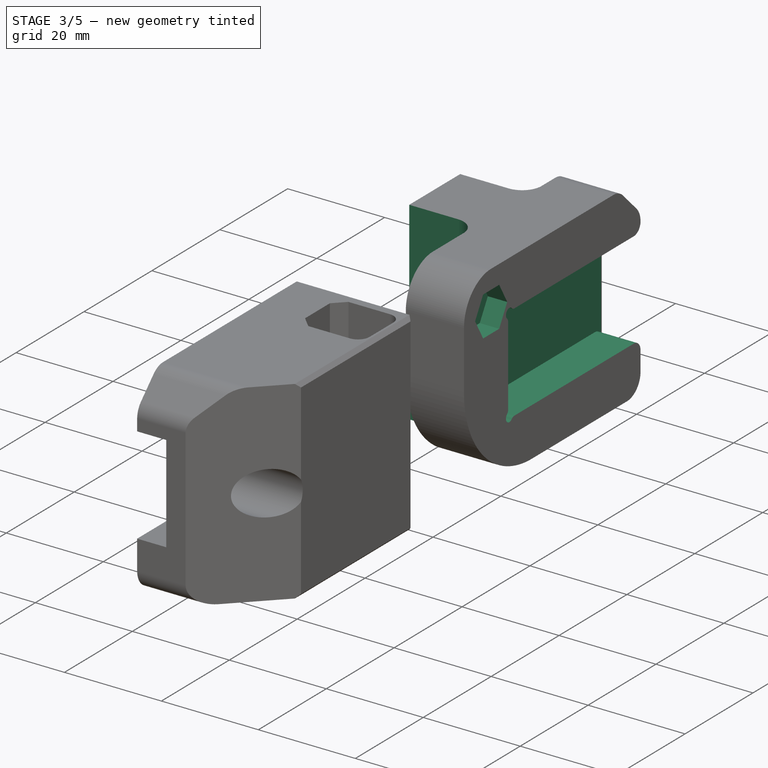
[diagram: stage 3 of 5 — iso view after this stage's code; geometry added in this stage tinted green]
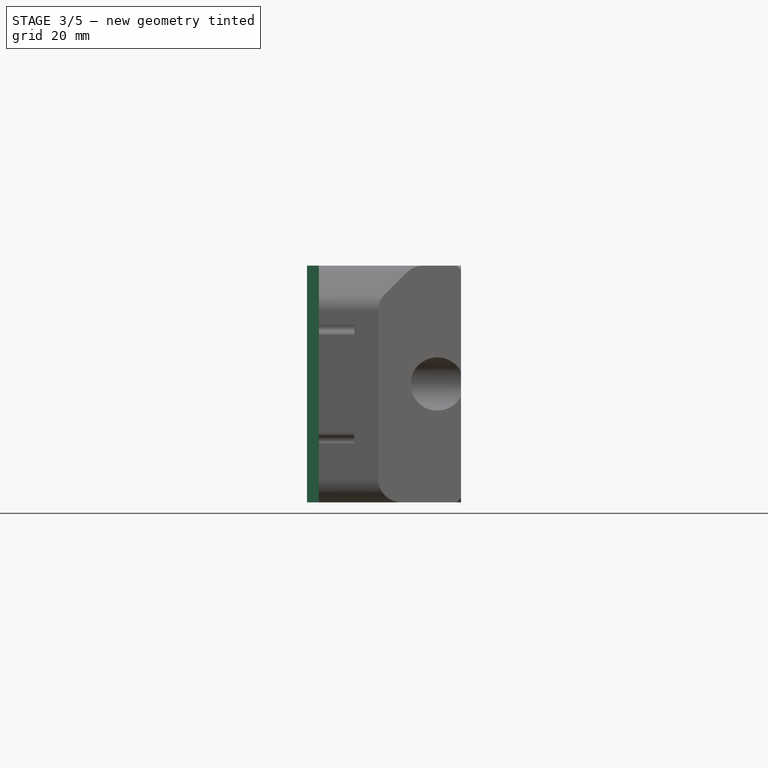
[diagram: stage 3 of 5 — front view after this stage's code; geometry added in this stage tinted green]
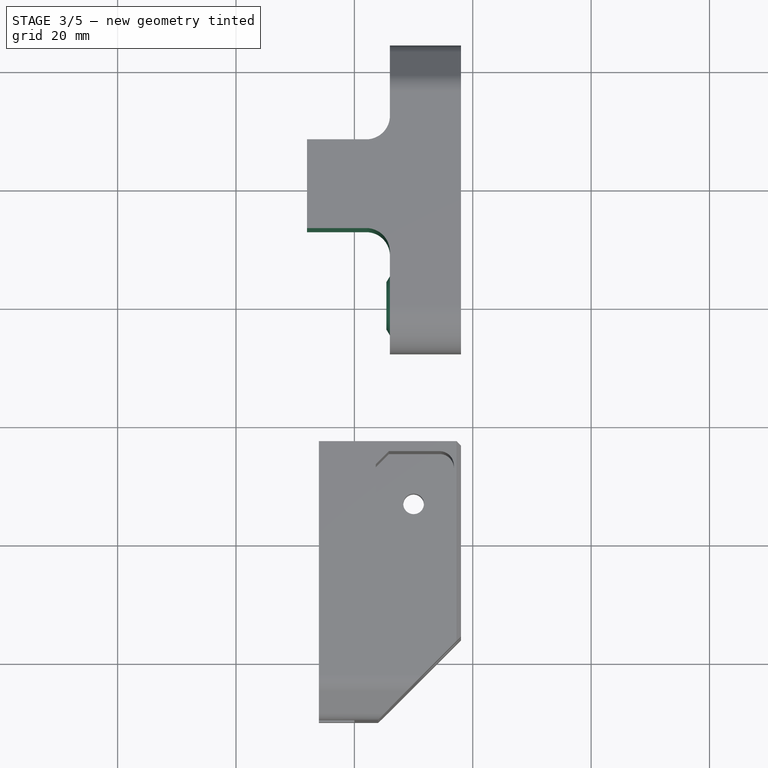
[diagram: stage 3 of 5 — top view after this stage's code; geometry added in this stage tinted green]
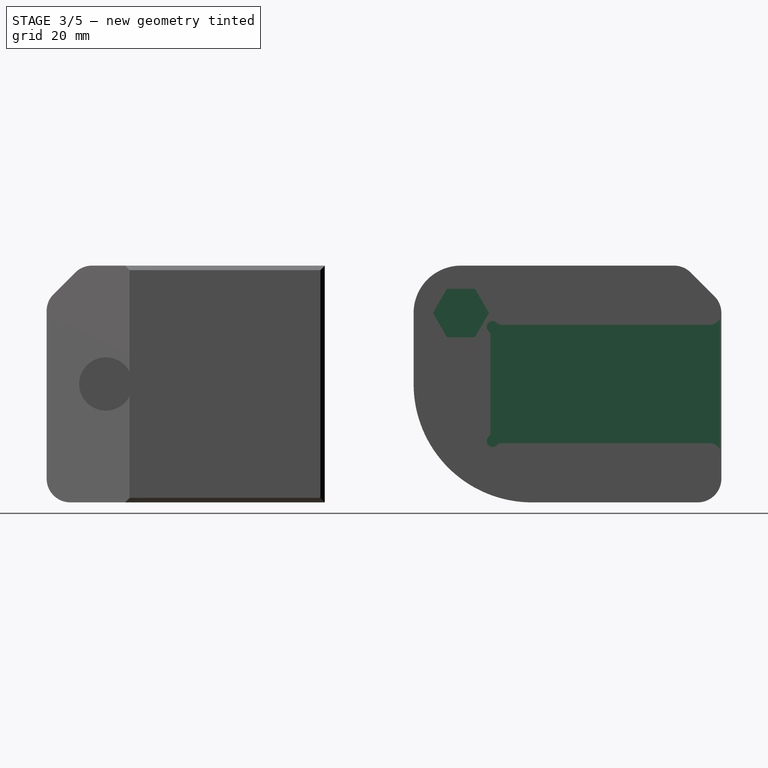
[diagram: stage 3 of 5 — right view after this stage's code; geometry added in this stage tinted green]
FEATURE [Sketcher::SketchObject] Sketch155
  ArcFitTolerance = 0
  AttachmentSupport = -> [XY_Plane050]
  FullyConstrained = true
  MakeInternals = false
  MapMode = 5
  sketch-geometry (11):
    g0: LineSegment StartX=6 StartY=10 StartZ=0 EndX=6 EndY=29 EndZ=0
    g1: LineSegment StartX=-10 StartY=33 StartZ=0 EndX=-10 EndY=10 EndZ=0
    g2: LineSegment StartX=-10 StartY=10 StartZ=0 EndX=6 EndY=10 EndZ=0
    g3: ArcOfCircle CenterX=2 CenterY=29 CenterZ=0 NormalX=0 NormalY=0 NormalZ=1 AngleXU=0 Radius=4 StartAngle=1e-16 EndAngle=1.5708
    g4: LineSegment StartX=2 StartY=33 StartZ=0 EndX=-10 EndY=33 EndZ=0
    g5: LineSegment StartX=-10 StartY=48 StartZ=0 EndX=2 EndY=48 EndZ=0
    g6: LineSegment StartX=6 StartY=52 StartZ=0 EndX=6 EndY=64 EndZ=0
    g7: ArcOfCircle CenterX=2 CenterY=52 CenterZ=0 NormalX=0 NormalY=0 NormalZ=1 AngleXU=0 Radius=4 StartAngle=4.71239 EndAngle=6.28319
    g8: GeomPoint [constr] X=6 Y=48 Z=0
    g9: LineSegment StartX=-10 StartY=48 StartZ=0 EndX=-10 EndY=64 EndZ=0
    g10: LineSegment StartX=-10 StartY=64 StartZ=0 EndX=6 EndY=64 EndZ=0
  constraints (30):
    c: Vertical(g0)
    c: Vertical(g1)
    c: Coincident(g1,g2)
    c: Coincident(g2,g0)
    c: Horizontal(g2)
    c: DistanceY(g0) = 10
    c: Coincident(g4,g1)
    c: Tangent(g3,g0) = -1.5708
    c: Tangent(g4,g3) = -1.5708
    c: Radius(g3) = 4
    c: DistanceX(g0) = 6
    c: DistanceY(g1) = 33
    c: DistanceX(g1) = -10
    c: Horizontal(g4)
    c: Horizontal(g5)
    c: Vertical(g6)
    c: DistanceY(g6) = 64
    c: PointOnObject(g8,g5)
    c: PointOnObject(g8,g6)
    c: Tangent(g5,g7) = -1.5708
    c: Tangent(g6,g7) = -1.5708
    c: Equal(g7,g3)
    c: Vertical(g8,g0)
    c: Coincident(g9,g5)
    c: Vertical(g9)
    c: Coincident(g10,g9)
    c: Coincident(g10,g6)
    c: Horizontal(g10)
    c: Vertical(g5,g1)
    c: DistanceY(g1,g5) = 15
FEATURE [PartDesign::Pocket] Pocket084
  BaseFeature = -> Pad046
  Direction = (0,0,-1)
  Length = 5
  Length2 = 5
  Midplane = true
  Placement = pos=(0,0,0) rot=(1,1,1;2.0944rad)
  Profile = -> Sketch155
  ReferenceAxis = -> Sketch155 [N_Axis]
  Suppressed = false
  Type = 1
FEATURE [PartDesign::AdditiveLoft] AdditiveLoft004
  BaseFeature = -> Pocket084
  Closed = false
  Placement = pos=(0,0,0) rot=(1,1,1;2.0944rad)
  Profile = -> Sketch051
  Ruled = false
  Sections = -> [Sketch052]
  Suppressed = false
FEATURE [PartDesign::Pocket] Pocket085
  BaseFeature = -> AdditiveLoft004
  Direction = (-1,0,0)
  Length = 5
  Length2 = 5
  Placement = pos=(0,0,0) rot=(1,1,1;2.0944rad)
  Profile = -> Sketch054
  ReferenceAxis = -> Sketch054 [N_Axis]
  Reversed = true
  Suppressed = false
  Type = 1
FEATURE [PartDesign::Pocket] Pocket086
  BaseFeature = -> Pocket085
  Direction = (-1,0,0)
  Length = 5
  Length2 = 5
  Placement = pos=(0,0,0) rot=(1,1,1;2.0944rad)
  Profile = -> Sketch053
  ReferenceAxis = -> Sketch053 [N_Axis]
  Suppressed = false
  Type = 1
FEATURE [Sketcher::SketchObject] Sketch156
  ArcFitTolerance = 0
  AttachmentOffset = pos=(0,0,10) rot=(0,0,1;0rad)
  AttachmentSupport = -> [YZ_Plane050]
  FullyConstrained = true
  MakeInternals = false
  MapMode = 5
  Placement = pos=(10,0,0) rot=(0.57735,0.57735,0.57735;2.0944rad)
  sketch-geometry (11):
    g0: ArcOfCircle CenterX=25.3536 CenterY=9.64645 CenterZ=0 NormalX=0 NormalY=0 NormalZ=1 AngleXU=0 Radius=1 StartAngle=0.743375 EndAngle=3.96901
    g1: ArcOfCircle CenterX=26.8259 CenterY=11 CenterZ=0 NormalX=0 NormalY=0 NormalZ=1 AngleXU=0 Radius=1 StartAngle=3.88497 EndAngle=4.71239
    g2: ArcOfCircle CenterX=24 CenterY=8.17407 CenterZ=0 NormalX=0 NormalY=0 NormalZ=1 AngleXU=0 Radius=1 StartAngle=-9e-16 EndAngle=0.827421
    g3: LineSegment StartX=62 StartY=10 StartZ=0 EndX=26.8259 EndY=10 EndZ=0
    g4: GeomPoint [constr] X=25 Y=0 Z=0
    g5: LineSegment StartX=25 StartY=8.17407 StartZ=0 EndX=25 EndY=0 EndZ=0
    g6: GeomPoint [constr] X=25 Y=10 Z=0
    g7: LineSegment StartX=64 StartY=12 StartZ=0 EndX=64 EndY=0 EndZ=0
    g8: LineSegment StartX=64 StartY=0 StartZ=0 EndX=25 EndY=0 EndZ=0
    g9: LineSegment [constr] StartX=25 StartY=10 StartZ=0 EndX=25.3536 EndY=9.64645 EndZ=0
    g10: ArcOfCircle CenterX=62 CenterY=12 CenterZ=0 NormalX=0 NormalY=0 NormalZ=1 AngleXU=0 Radius=2 StartAngle=4.71239 EndAngle=6.28319
  constraints (27):
    c: Tangent(g1,g0) = 1.5708
    c: Tangent(g2,g0) = 1.5708
    c: Equal(g2,g0)
    c: Equal(g0,g1)
    c: Radius(g2) = 1
    c: Horizontal(g3)
    c: PointOnObject(g4,g-1)
    c: DistanceX(g4) = 25
    c: Coincident(g5,g4)
    c: Vertical(g5)
    c: Tangent(g5,g2) = 1.5708
    c: PointOnObject(g6,g3)
    c: PointOnObject(g6,g5)
    c: PointOnObject(g7,g-1)
    c: Vertical(g7)
    c: Coincident(g8,g7)
    c: Coincident(g8,g5)
    c: Coincident(g9,g6)
    c: Coincident(g9,g0)
    c: Angle(g9) = -0.785398
    c: Distance(g9) = 0.5
    c: Tangent(g3,g1) = 1.5708
    c: DistanceY(g6) = 10
    c: DistanceX(g7) = 64
    c: Tangent(g10,g3) = 1.5708
    c: Tangent(g10,g7) = 1.5708
    c: Radius(g10) = 2
FEATURE [PartDesign::Pocket] Pocket087
  BaseFeature = -> Pocket086
  Direction = (-1,0,0)
  Length = 5
  Length2 = 5
  Placement = pos=(0,0,0) rot=(1,1,1;2.0944rad)
  Profile = -> Sketch156
  ReferenceAxis = -> Sketch156 [N_Axis]
  Reversed = true
  Suppressed = false
  Type = 1
FEATURE [PartDesign::Mirrored] Mirrored024
  BaseFeature = -> Pocket087
  MirrorPlane = -> XY_Plane050
  Originals = -> [Pocket087]
  Placement = pos=(0,0,0) rot=(1,1,1;2.0944rad)
  Refine = true
  Suppressed = false
  TransformMode = 0
FEATURE [Sketcher::SketchObject] Sketch157
  ArcFitTolerance = 0
  AttachmentOffset = pos=(0,0,3.5) rot=(0,0,1;0rad)
  AttachmentSupport = -> [YZ_Plane050]
  FullyConstrained = true
  MakeInternals = false
  MapMode = 5
  Placement = pos=(3.5,0,0) rot=(0.57735,0.57735,0.57735;2.0944rad)
  sketch-geometry (43):
    g0: LineSegment StartX=38.15 StartY=-20 StartZ=0 EndX=38.9 EndY=-20 EndZ=0
    g1: LineSegment StartX=38.9 StartY=-20 StartZ=0 EndX=38.9 EndY=-19 EndZ=0
    g2: LineSegment StartX=38.9 StartY=-19 StartZ=0 EndX=39.9 EndY=-19 EndZ=0
    g3: LineSegment StartX=39.9 StartY=-19 StartZ=0 EndX=39.9 EndY=-18 EndZ=0
    g4: LineSegment StartX=39.9 StartY=-18 StartZ=0 EndX=38.9 EndY=-18 EndZ=0
    g5: LineSegment StartX=38.9 StartY=-18 StartZ=0 EndX=38.9 EndY=-17 EndZ=0
    g6: LineSegment StartX=38.9 StartY=-17 StartZ=0 EndX=39.9 EndY=-17 EndZ=0
    g7: LineSegment StartX=39.9 StartY=-17 StartZ=0 EndX=39.9 EndY=-16 EndZ=0
    g8: LineSegment StartX=39.9 StartY=-16 StartZ=0 EndX=38.9 EndY=-16 EndZ=0
    g9: LineSegment StartX=38.9 StartY=-16 StartZ=0 EndX=38.9 EndY=-15 EndZ=0
    g10: LineSegment StartX=38.9 StartY=-15 StartZ=0 EndX=39.9 EndY=-15 EndZ=0
    g11: LineSegment StartX=39.9 StartY=-15 StartZ=0 EndX=39.9 EndY=-14 EndZ=0
    g12: LineSegment StartX=39.9 StartY=-14 StartZ=0 EndX=38.9 EndY=-14 EndZ=0
    g13: GeomPoint [constr] X=45 Y=0 Z=0
    g14: GeomPoint [constr] X=38.9 Y=0 Z=0
    g15: GeomPoint [constr] X=38.15 Y=0 Z=0
    g16: LineSegment StartX=38.9 StartY=-14 StartZ=0 EndX=38.9 EndY=-13 EndZ=0
    g17: LineSegment StartX=38.9 StartY=-13 StartZ=0 EndX=37.9 EndY=-13 EndZ=0
    g18: LineSegment StartX=37.9 StartY=-13 StartZ=0 EndX=37.9 EndY=-14 EndZ=0
    g19: LineSegment StartX=37.9 StartY=-14 StartZ=0 EndX=36.9 EndY=-14 EndZ=0
    g20: LineSegment StartX=36.9 StartY=-14 StartZ=0 EndX=36.9 EndY=-13 EndZ=0
    g21: LineSegment StartX=36.9 StartY=-13 StartZ=0 EndX=35.9 EndY=-13 EndZ=0
    g22: LineSegment StartX=35.9 StartY=-13 StartZ=0 EndX=35.9 EndY=-14 EndZ=0
    g23: LineSegment StartX=35.9 StartY=-14 StartZ=0 EndX=34.9 EndY=-14 EndZ=0
    g24: LineSegment StartX=34.9 StartY=-14 StartZ=0 EndX=34.9 EndY=-13 EndZ=0
    g25: LineSegment StartX=34.9 StartY=-13 StartZ=0 EndX=33.9 EndY=-13 EndZ=0
    g26: LineSegment StartX=33.9 StartY=-13 StartZ=0 EndX=33.9 EndY=-14 EndZ=0
    g27: LineSegment StartX=33.9 StartY=-14 StartZ=0 EndX=32.9 EndY=-14 EndZ=0
    g28: LineSegment StartX=32.9 StartY=-14 StartZ=0 EndX=32.9 EndY=-13 EndZ=0
    g29: LineSegment StartX=32.9 StartY=-13 StartZ=0 EndX=31.9 EndY=-13 EndZ=0
    g30: LineSegment StartX=31.9 StartY=-13 StartZ=0 EndX=31.9 EndY=-14 EndZ=0
    g31: LineSegment StartX=31.9 StartY=-14 StartZ=0 EndX=30.9 EndY=-14 EndZ=0
    g32: LineSegment StartX=30.9 StartY=-14 StartZ=0 EndX=30.9 EndY=-13 EndZ=0
    g33: LineSegment StartX=30.9 StartY=-13 StartZ=0 EndX=29.9 EndY=-13 EndZ=0
    g34: LineSegment StartX=29.9 StartY=-13 StartZ=0 EndX=29.9 EndY=-14 EndZ=0
    g35: LineSegment StartX=29.9 StartY=-14 StartZ=0 EndX=28.9 EndY=-14 EndZ=0
    g36: LineSegment StartX=28.9 StartY=-14 StartZ=0 EndX=28.9 EndY=-13 EndZ=0
    g37: LineSegment StartX=28.9 StartY=-13 StartZ=0 EndX=27.9 EndY=-13 EndZ=0
    g38: LineSegment StartX=27.9 StartY=-13 StartZ=0 EndX=27.9 EndY=-14 EndZ=0
    g39: LineSegment StartX=27.9 StartY=-14 StartZ=0 EndX=26.9 EndY=-14 EndZ=0
    g40: LineSegment StartX=26.9 StartY=-14 StartZ=0 EndX=26.9 EndY=-14.75 EndZ=0
    g41: LineSegment StartX=26.9 StartY=-14.75 StartZ=0 EndX=38.15 EndY=-14.75 EndZ=0
    g42: LineSegment StartX=38.15 StartY=-14.75 StartZ=0 EndX=38.15 EndY=-20 EndZ=0
  constraints (126):
    c: Horizontal(g0)
    c: Vertical(g1)
    c: Coincident(g1,g2)
    c: Horizontal(g2)
    c: Coincident(g2,g3)
    c: Vertical(g3)
    c: Coincident(g3,g4)
    c: Horizontal(g4)
    c: Coincident(g4,g5)
    c: Vertical(g5)
    c: Coincident(g5,g6)
    c: Horizontal(g6)
    c: Vertical(g7)
    c: Coincident(g7,g8)
    c: Horizontal(g8)
    c: Coincident(g8,g9)
    c: Vertical(g9)
    c: Coincident(g9,g10)
    c: Horizontal(g10)
    c: Coincident(g10,g11)
    c: Vertical(g11)
    c: Coincident(g11,g12)
    c: Horizontal(g12)
    c: PointOnObject(g13,g-1)
    c: DistanceX(g13) = 45
    c: Vertical(g9,g5)
    c: Vertical(g5,g1)
    c: Vertical(g3,g7)
    c: Vertical(g7,g11)
    c: Equal(g1,g5)
    c: Equal(g5,g9)
    c: Equal(g11,g7)
    c: Equal(g7,g3)
    c: Coincident(g7,g6)
    c: PointOnObject(g14,g-1)
    c: DistanceX(g13,g14) = -6.1
    c: PointOnObject(g15,g-1)
    c: DistanceX(g14,g15) = -0.75
    c: Coincident(g0,g1)
    c: DistanceY(g0) = -20
    c: DistanceY(g1,g1) = 1
    c: DistanceY(g0,g3) = 2
    c: Coincident(g12,g16)
    c: Vertical(g16)
    c: Coincident(g16,g17)
    c: Horizontal(g17)
    c: Coincident(g17,g18)
    c: Vertical(g18)
    c: Coincident(g18,g19)
    c: Horizontal(g19)
    c: Coincident(g19,g20)
    c: Vertical(g20)
    c: Coincident(g20,g21)
    c: Coincident(g21,g22)
    c: Vertical(g22)
    c: Coincident(g22,g23)
    c: Horizontal(g23)
    c: Coincident(g23,g24)
    c: Vertical(g24)
    c: Coincident(g24,g25)
    c: Horizontal(g25)
    c: Coincident(g25,g26)
    c: Vertical(g26)
    c: Coincident(g26,g27)
    c: Horizontal(g27)
    c: Coincident(g27,g28)
    c: Vertical(g28)
    c: Coincident(g28,g29)
    c: Horizontal(g29)
    c: Coincident(g29,g30)
    c: Vertical(g30)
    c: Coincident(g30,g31)
    c: Horizontal(g31)
    c: Coincident(g31,g32)
    c: Vertical(g32)
    c: Coincident(g32,g33)
    c: Horizontal(g33)
    c: Coincident(g33,g34)
    c: Vertical(g34)
    c: Coincident(g34,g35)
    c: Horizontal(g35)
    c: Coincident(g35,g36)
    c: Vertical(g36)
    c: Coincident(g36,g37)
    c: Horizontal(g37)
    c: Coincident(g37,g38)
    c: Vertical(g38)
    c: Coincident(g38,g39)
    c: Horizontal(g39)
    c: Coincident(g39,g40)
    c: Vertical(g40)
    c: Coincident(g40,g41)
    c: Horizontal(g41)
    c: Coincident(g41,g42)
    c: Coincident(g42,g0)
    c: Vertical(g42)
    c: Vertical(g41,g15)
    c: Vertical(g12,g9)
    c: Horizontal(g18,g12)
    c: Horizontal(g12,g22)
    c: Horizontal(g22,g26)
    c: Horizontal(g26,g30)
    c: Horizontal(g30,g34)
    c: Horizontal(g34,g38)
    c: Horizontal(g21)
    c: Horizontal(g17,g21)
    c: Horizontal(g21,g25)
    c: Horizontal(g25,g29)
    c: Horizontal(g29,g33)
    c: Horizontal(g33,g37)
    c: DistanceY(g41,g18) = 0.75
    c: Vertical(g16,g14)
    c: DistanceX(g2,g2) = 1
    c: Equal(g12,g16)
    c: Equal(g17,g11)
    c: Equal(g11,g21)
    c: Equal(g21,g25)
    c: Equal(g25,g29)
    c: Equal(g29,g33)
    c: Equal(g33,g37)
    c: Equal(g39,g35)
    c: Equal(g35,g31)
    c: Equal(g31,g27)
    c: Equal(g27,g23)
    c: Equal(g23,g19)
    c: Equal(g19,g9)
FEATURE [PartDesign::Pocket] Pocket088
  BaseFeature = -> Mirrored024
  Direction = (-1,0,0)
  Length = 5
  Length2 = 5
  Placement = pos=(0,0,0) rot=(1,1,1;2.0944rad)
  Profile = -> Sketch157
  ReferenceAxis = -> Sketch157 [N_Axis]
  Suppressed = false
  Type = 1
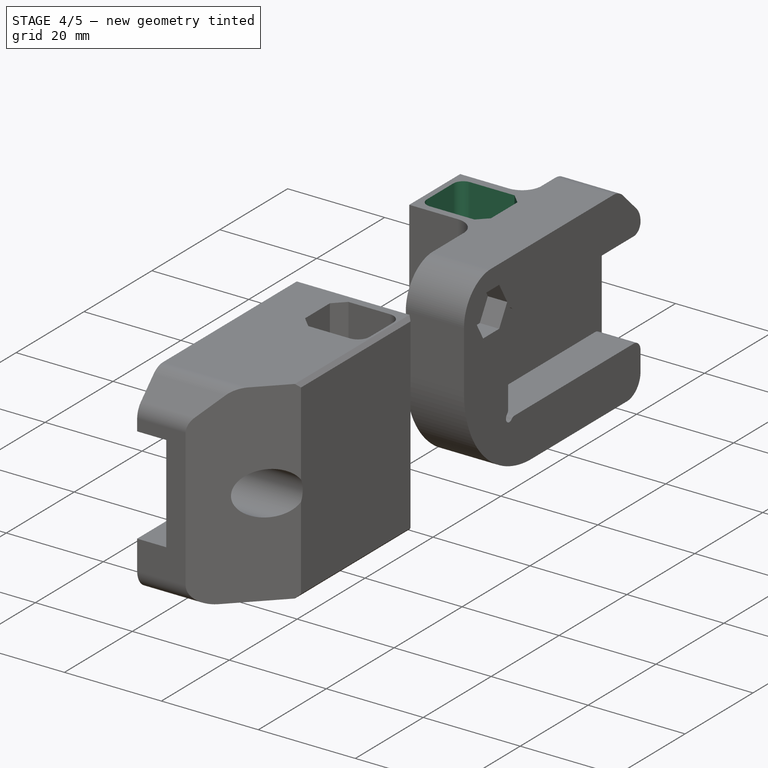
[diagram: stage 4 of 5 — iso view after this stage's code; geometry added in this stage tinted green]
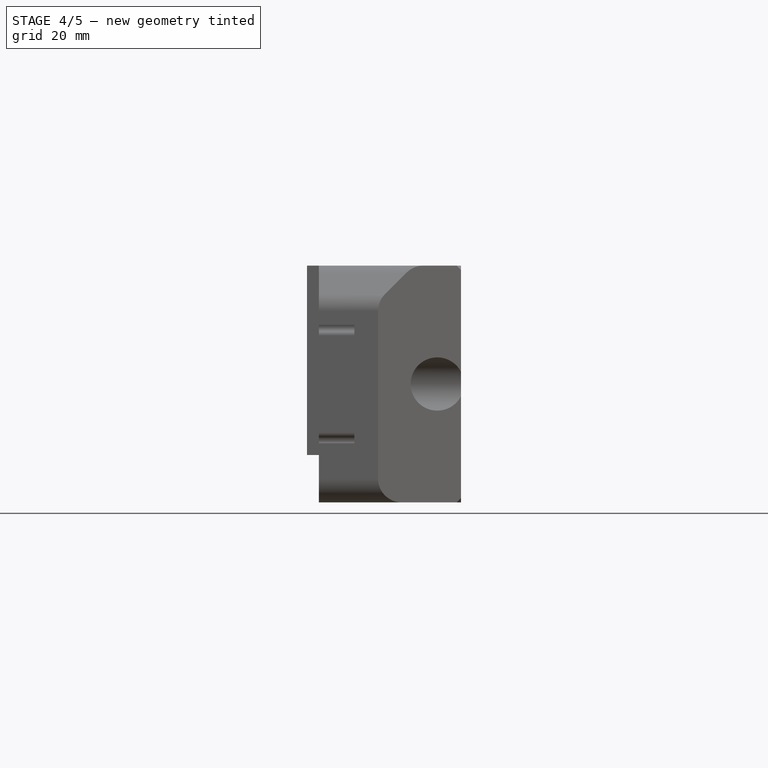
[diagram: stage 4 of 5 — front view after this stage's code; geometry added in this stage tinted green]
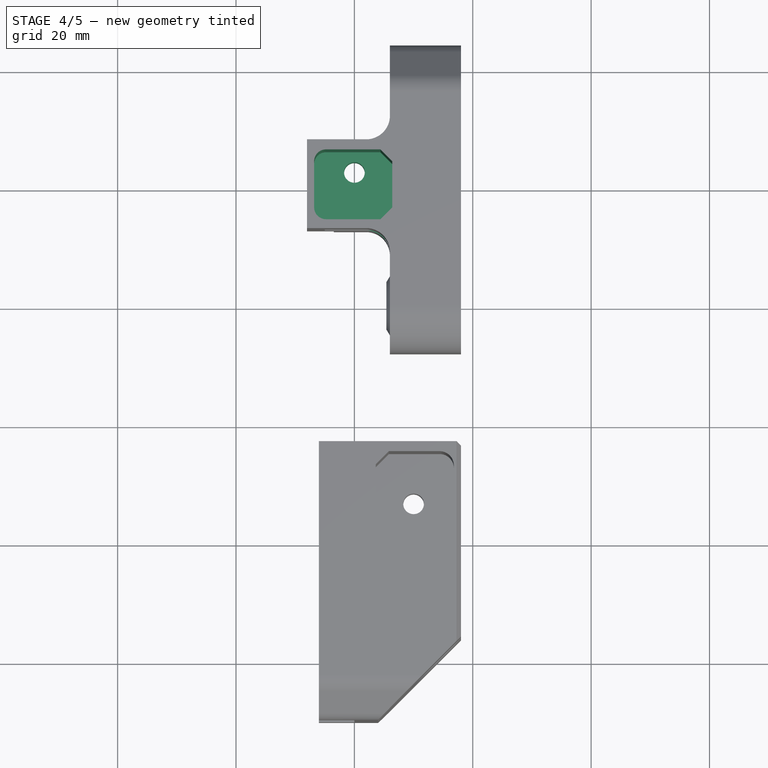
[diagram: stage 4 of 5 — top view after this stage's code; geometry added in this stage tinted green]
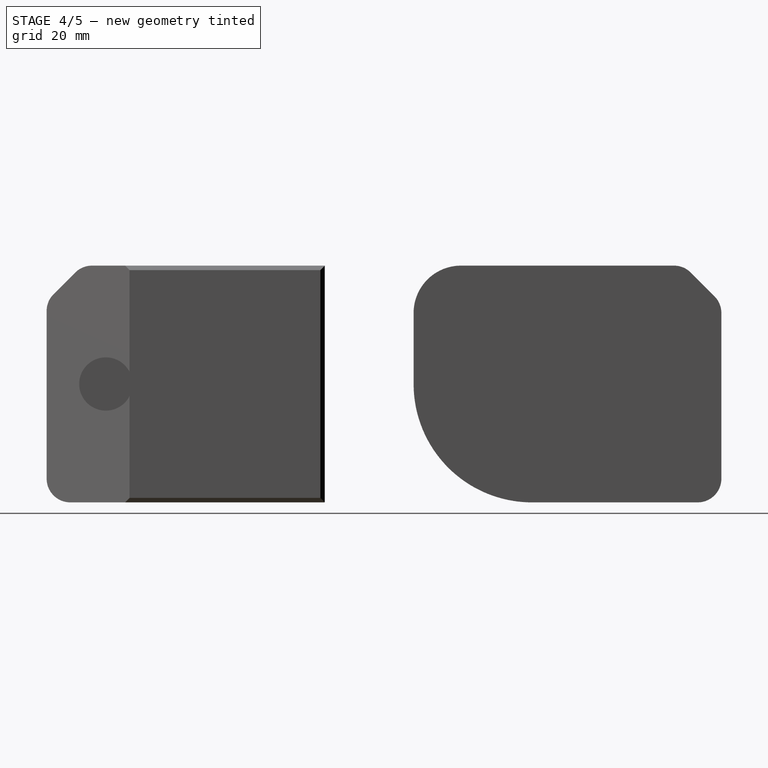
[diagram: stage 4 of 5 — right view after this stage's code; geometry added in this stage tinted green]
FEATURE [Sketcher::SketchObject] Sketch158
  ArcFitTolerance = 0
  AttachmentSupport = -> [XZ_Plane050]
  FullyConstrained = true
  MakeInternals = false
  MapMode = 5
  Placement = pos=(0,0,0) rot=(1,0,0;1.5708rad)
  sketch-geometry (4):
    g0: LineSegment StartX=-8 StartY=-12 StartZ=0 EndX=-3.5 EndY=-12 EndZ=0
    g1: LineSegment StartX=-3.5 StartY=-12 StartZ=0 EndX=-3.5 EndY=-20 EndZ=0
    g2: LineSegment StartX=-8 StartY=-20 StartZ=0 EndX=-8 EndY=-12 EndZ=0
    g3: LineSegment StartX=-3.5 StartY=-20 StartZ=0 EndX=-8 EndY=-20 EndZ=0
  constraints (12):
    c: Coincident(g0,g1)
    c: Coincident(g2,g0)
    c: Horizontal(g0)
    c: Vertical(g1)
    c: Vertical(g2)
    c: DistanceX(g0) = -3.5
    c: DistanceX(g0) = -8
    c: Horizontal(g1,g2)
    c: Coincident(g3,g1)
    c: Coincident(g3,g2)
    c: DistanceY(g1) = -20
    c: DistanceY(g1,g1) = 8
FEATURE [PartDesign::Pocket] Pocket089
  BaseFeature = -> Pocket088
  Direction = (0,1,-2e-16)
  Length = 5
  Length2 = 5
  Midplane = true
  Placement = pos=(0,0,0) rot=(1,1,1;2.0944rad)
  Profile = -> Sketch158
  ReferenceAxis = -> Sketch158 [N_Axis]
  Suppressed = false
  Type = 1
FEATURE [Sketcher::SketchObject] Sketch159
  ArcFitTolerance = 0
  AttachmentOffset = pos=(0,0,-8) rot=(0,0,1;0rad)
  AttachmentSupport = -> [XY_Plane050]
  FullyConstrained = true
  MakeInternals = false
  MapMode = 5
  Placement = pos=(0,0,-8) rot=(0,0,1;0rad)
  sketch-geometry (12):
    g0: GeomPoint [constr] X=0 Y=38.9 Z=0
    g1: GeomPoint [constr] X=0 Y=45 Z=0
    g2: LineSegment StartX=-4.8 StartY=46.3 StartZ=0 EndX=4.4 EndY=46.3 EndZ=0
    g3: LineSegment StartX=6.4 StartY=44.3 StartZ=0 EndX=6.4 EndY=36.5 EndZ=0
    g4: LineSegment StartX=4.4 StartY=34.5 StartZ=0 EndX=-4.8 EndY=34.5 EndZ=0
    g5: LineSegment StartX=-6.8 StartY=36.5 StartZ=0 EndX=-6.8 EndY=44.3 EndZ=0
    g6: ArcOfCircle CenterX=-4.8 CenterY=44.3 CenterZ=0 NormalX=0 NormalY=0 NormalZ=1 AngleXU=0 Radius=2 StartAngle=1.5708 EndAngle=3.14159
    g7: GeomPoint [constr] X=-6.8 Y=46.3 Z=0
    g8: ArcOfCircle CenterX=-4.8 CenterY=36.5 CenterZ=0 NormalX=0 NormalY=0 NormalZ=1 AngleXU=0 Radius=2 StartAngle=3.14159 EndAngle=4.71239
    g9: GeomPoint [constr] X=-6.8 Y=34.5 Z=0
    g10: LineSegment StartX=4.4 StartY=46.3 StartZ=0 EndX=6.4 EndY=44.3 EndZ=0
    g11: LineSegment StartX=6.4 StartY=36.5 StartZ=0 EndX=4.4 EndY=34.5 EndZ=0
  constraints (30):
    c: PointOnObject(g0,g-2)
    c: PointOnObject(g1,g-2)
    c: DistanceY(g1) = 45
    c: DistanceY(g1,g0) = -6.1
    c: Horizontal(g2)
    c: Horizontal(g4)
    c: Vertical(g3)
    c: Vertical(g5)
    c: PointOnObject(g7,g2)
    c: PointOnObject(g7,g5)
    c: Tangent(g2,g6) = 1.5708
    c: Tangent(g5,g6) = 1.5708
    c: PointOnObject(g9,g4)
    c: PointOnObject(g9,g5)
    c: Tangent(g4,g8) = 1.5708
    c: Tangent(g5,g8) = 1.5708
    c: Equal(g6,g8)
    c: Radius(g8) = 2
    c: Coincident(g3,g11)
    c: Coincident(g4,g11)
    c: Coincident(g3,g10)
    c: Coincident(g2,g10)
    c: Perpendicular(g11,g10)
    c: Angle(g11) = -2.35619
    c: Vertical(g4,g2)
    c: DistanceY(g4,g0) = 4.4
    c: DistanceY(g4,g2) = 11.8
    c: DistanceX(g3) = 6.4
    c: Horizontal(g5,g3)
    c: DistanceX(g5) = -6.8
FEATURE [PartDesign::Pocket] Pocket090
  BaseFeature = -> Pocket089
  Direction = (0,0,-1)
  Length = 5
  Length2 = 5
  Placement = pos=(0,0,0) rot=(1,1,1;2.0944rad)
  Profile = -> Sketch159
  ReferenceAxis = -> Sketch159 [N_Axis]
  Reversed = true
  Suppressed = false
  Type = 1
FEATURE [Sketcher::SketchObject] Sketch160
  ArcFitTolerance = 0
  AttachmentSupport = -> [XY_Plane050]
  FullyConstrained = true
  MakeInternals = false
  MapMode = 5
  sketch-geometry (4):
    g0: GeomPoint [constr] X=0 Y=38.9 Z=0
    g1: GeomPoint [constr] X=0 Y=45 Z=0
    g2: GeomPoint [constr] X=0 Y=42.9 Z=0
    g3: Circle CenterX=0 CenterY=42.9 CenterZ=0 NormalX=0 NormalY=0 NormalZ=1 AngleXU=0 Radius=1.75
  constraints (10):
    c: PointOnObject(g0,g-2)
    c: PointOnObject(g1,g-2)
    c: DistanceY(g1) = 45
    c: DistanceY(g1,g0) = -6.1
    c: DistanceY(g2) = 42.9
    c: DistanceY(g1,g2) = -2.1
    c: Coincident(g3,g2)
    c: Diameter(g3) = 3.5
    c: DistanceY(g0,g3) = 4
    c: PointOnObject(g3,g-2)
FEATURE [PartDesign::Pocket] Pocket091
  BaseFeature = -> Pocket090
  Direction = (0,0,-1)
  Length = 5
  Length2 = 5
  Midplane = true
  Placement = pos=(0,0,0) rot=(1,1,1;2.0944rad)
  Profile = -> Sketch160
  ReferenceAxis = -> Sketch160 [N_Axis]
  Suppressed = false
  Type = 1
FEATURE [Sketcher::SketchObject] Sketch161
  ArcFitTolerance = 0
  AttachmentOffset = pos=(0,0,-10) rot=(0,0,1;0rad)
  AttachmentSupport = -> [XY_Plane050]
  FullyConstrained = true
  MakeInternals = false
  MapMode = 5
  Placement = pos=(0,0,-10) rot=(0,0,1;0rad)
  sketch-geometry (13):
    g0: GeomPoint [constr] X=0 Y=42.9 Z=0
    g1: GeomPoint [constr] X=0 Y=38.9 Z=0
    g2: GeomPoint [constr] X=0 Y=45 Z=0
    g3: LineSegment StartX=1.61658 StartY=40.1 StartZ=0 EndX=3.23316 EndY=42.9 EndZ=0
    g4: LineSegment StartX=3.23316 StartY=42.9 StartZ=0 EndX=1.61658 EndY=45.7 EndZ=0
    g5: LineSegment StartX=1.61658 StartY=45.7 StartZ=0 EndX=-1.61658 EndY=45.7 EndZ=0
    g6: LineSegment [constr] StartX=-1.61658 StartY=45.7 StartZ=0 EndX=-3.23316 EndY=42.9 EndZ=0
    g7: LineSegment [constr] StartX=-3.23316 StartY=42.9 StartZ=0 EndX=-1.61658 EndY=40.1 EndZ=0
    g8: LineSegment StartX=-1.61658 StartY=40.1 StartZ=0 EndX=1.61658 EndY=40.1 EndZ=0
    g9: Circle [constr] CenterX=0 CenterY=42.9 CenterZ=0 NormalX=0 NormalY=0 NormalZ=1 AngleXU=0 Radius=3.23316
    g10: LineSegment StartX=-1.61658 StartY=45.7 StartZ=0 EndX=-8 EndY=45.7 EndZ=0
    g11: LineSegment StartX=-1.61658 StartY=40.1 StartZ=0 EndX=-8 EndY=40.1 EndZ=0
    g12: LineSegment StartX=-8 StartY=40.1 StartZ=0 EndX=-8 EndY=45.7 EndZ=0
  constraints (30):
    c: PointOnObject(g0,g-2)
    c: PointOnObject(g1,g-2)
    c: PointOnObject(g2,g-2)
    c: DistanceY(g2) = 45
    c: DistanceY(g2,g1) = -6.1
    c: DistanceY(g1,g0) = 4
    c: Coincident(g3,g4)
    c: Coincident(g4,g5)
    c: Coincident(g5,g6)
    c: Coincident(g6,g7)
    c: Coincident(g7,g8)
    c: Coincident(g8,g3)
    c: Equal(g3, g4-g8) x5
    c: PointOnObject(g3,g9)
    c: PointOnObject(g4,g9)
    c: PointOnObject(g5,g9)
    c: PointOnObject(g6,g9)
    c: PointOnObject(g7,g9)
    c: PointOnObject(g8,g9)
    c: Coincident(g9,g0)
    c: DistanceY(g3,g4) = 5.6
    c: Horizontal(g5)
    c: Coincident(g10,g5)
    c: Horizontal(g10)
    c: Coincident(g11,g8)
    c: Horizontal(g11)
    c: Coincident(g12,g11)
    c: Coincident(g12,g10)
    c: Vertical(g12)
    c: DistanceX(g10) = -8
FEATURE [PartDesign::Pocket] Pocket092
  BaseFeature = -> Pocket091
  Direction = (0,0,-1)
  Length = 3
  Length2 = 5
  Placement = pos=(0,0,0) rot=(1,1,1;2.0944rad)
  Profile = -> Sketch161
  ReferenceAxis = -> Sketch161 [N_Axis]
  Suppressed = false
  Type = 0
FEATURE [Sketcher::SketchObject] Sketch165
  ArcFitTolerance = 0
  AttachmentOffset = pos=(0,0,9.6) rot=(0,0,1;0rad)
  AttachmentSupport = -> [YZ_Plane050]
  FullyConstrained = true
  MakeInternals = false
  MapMode = 5
  Placement = pos=(9.6,0,0) rot=(0.57735,0.57735,0.57735;2.0944rad)
  sketch-geometry (2):
    g0: Circle CenterX=58 CenterY=0 CenterZ=0 NormalX=0 NormalY=0 NormalZ=1 AngleXU=0 Radius=2.75
    g1: Circle CenterX=30 CenterY=0 CenterZ=0 NormalX=0 NormalY=0 NormalZ=1 AngleXU=0 Radius=2.75
  constraints (6):
    c: PointOnObject(g0,g-1)
    c: Diameter(g0) = 5.5
    c: DistanceX(g0) = 58
    c: PointOnObject(g1,g-1)
    c: Diameter(g1) = 5.5
    c: DistanceX(g1) = 30
FEATURE [PartDesign::Pocket] Pocket095
  BaseFeature = -> Pocket092
  Direction = (-1,0,0)
  Length = 5
  Length2 = 5
  Placement = pos=(0,0,0) rot=(1,1,1;2.0944rad)
  Profile = -> Sketch165
  ReferenceAxis = -> Sketch165 [N_Axis]
  Suppressed = false
  Type = 1
FEATURE [Sketcher::SketchObject] Sketch166
  ArcFitTolerance = 0
  AttachmentOffset = pos=(0,0,6) rot=(0,0,1;0rad)
  AttachmentSupport = -> [YZ_Plane050]
  FullyConstrained = true
  MakeInternals = false
  MapMode = 5
  Placement = pos=(6,0,0) rot=(0.57735,0.57735,0.57735;2.0944rad)
  sketch-geometry (1):
    g0: Circle CenterX=30 CenterY=0 CenterZ=0 NormalX=0 NormalY=0 NormalZ=1 AngleXU=0 Radius=5
  constraints (3):
    c: PointOnObject(g0,g-1)
    c: Diameter(g0) = 10
    c: DistanceX(g0) = 30
FEATURE [PartDesign::Pocket] Pocket096
  BaseFeature = -> Pocket095
  Direction = (-1,0,0)
  Length = 11
  Length2 = 5
  Placement = pos=(0,0,0) rot=(1,1,1;2.0944rad)
  Profile = -> Sketch166
  ReferenceAxis = -> Sketch166 [N_Axis]
  Refine = true
  Suppressed = false
  Type = 0
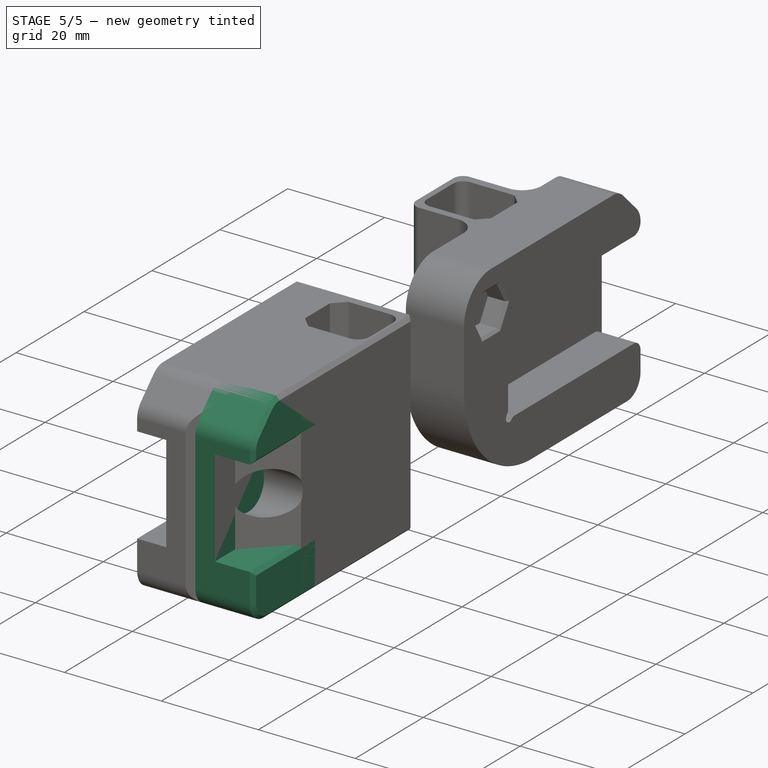
[diagram: stage 5 of 5 — iso view after this stage's code; geometry added in this stage tinted green]
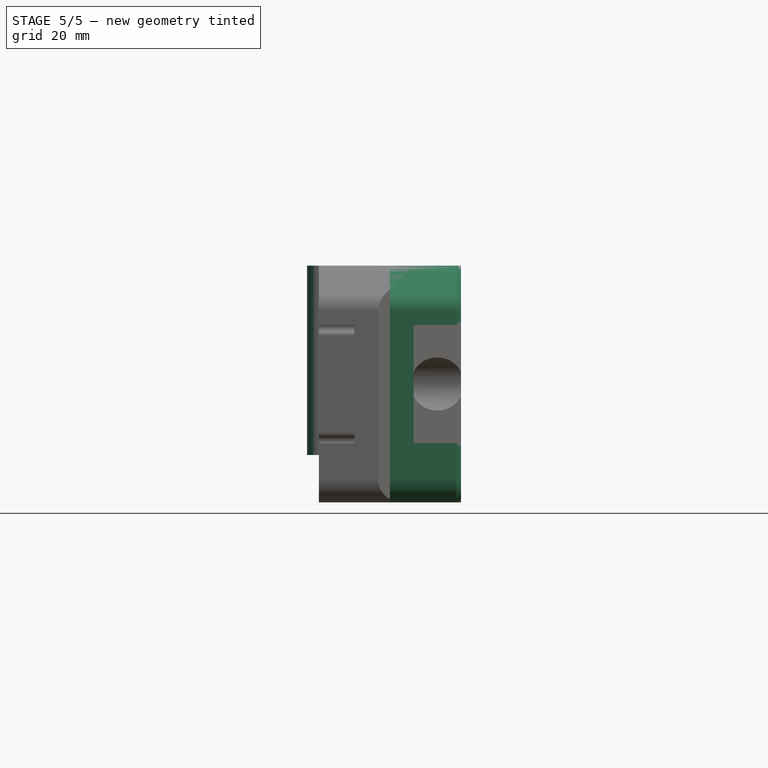
[diagram: stage 5 of 5 — front view after this stage's code; geometry added in this stage tinted green]
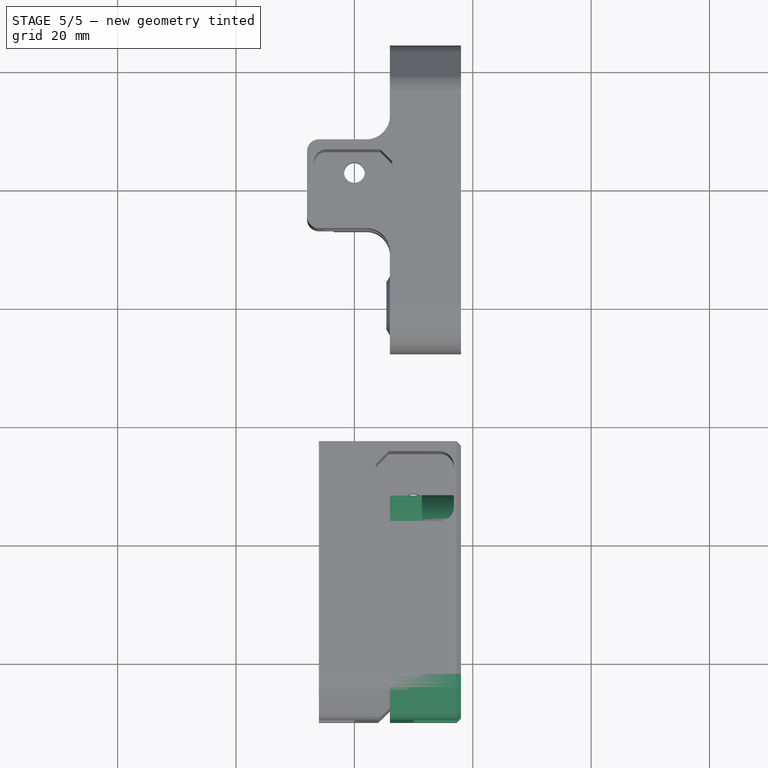
[diagram: stage 5 of 5 — top view after this stage's code; geometry added in this stage tinted green]
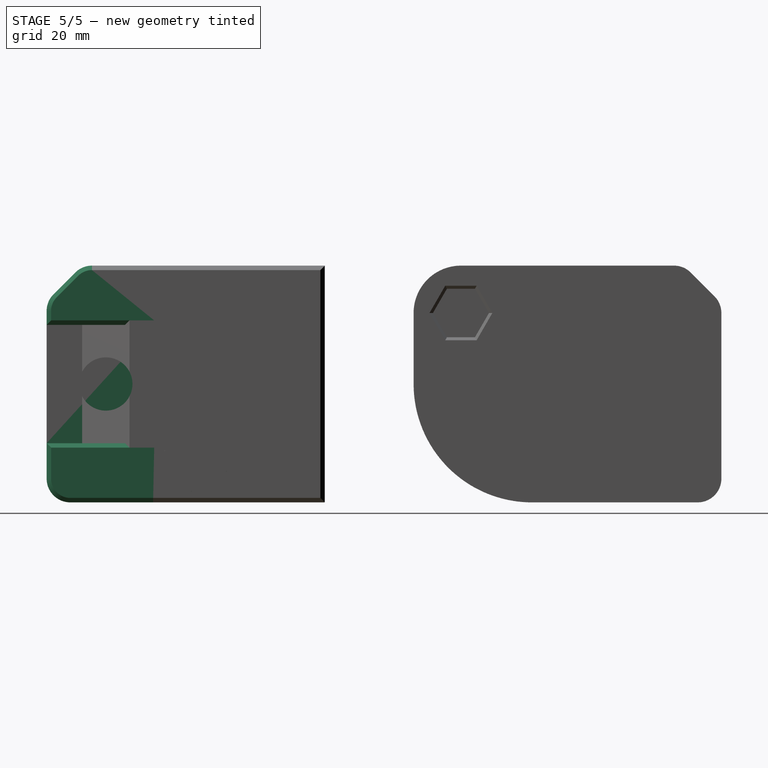
[diagram: stage 5 of 5 — right view after this stage's code; geometry added in this stage tinted green]
FEATURE [Spreadsheet::Sheet] Spreadsheet
  cells = A1='x_position; B1(x_position)=0; A2='y_position; B2(y_position)=110; A3='z_position; B3(z_position)=0; A4='build_volume_xy; B4(build_volume_xy)=220; A5='build_volume_z; B5(build_volume_z)=220; A6='bed_hole_distance; B6(bed_hole_distance)=209; A7='xy_gantry_height; B7(xy_gantry_height)==B5 + 140; A8='height; B8(height)==B5 + 270; A9='side_length; B9(side_length)==B4 + 160; A10='xy_idler_distance_2; B10(xy_idler_distance_2)=21.83; A11='v_wheel_width; B11(v_wheel_width)=10.8; A12='m5_nut_width; B12(m5_nut_width)=8
FEATURE [Sketcher::SketchObject] Sketch303
  ArcFitTolerance = 0
  AttachmentOffset = pos=(0,0,18) rot=(0,0,1;0rad)
  AttachmentSupport = -> [YZ_Plane294]
  FullyConstrained = true
  MakeInternals = false
  MapMode = 5
  Placement = pos=(18,0,0) rot=(0.57735,0.57735,0.57735;2.0944rad)
  sketch-geometry (12):
    g0: LineSegment StartX=-50 StartY=12.3431 StartZ=0 EndX=-50 EndY=-16 EndZ=0
    g1: LineSegment StartX=-46 StartY=-20 StartZ=0 EndX=-32 EndY=-20 EndZ=0
    g2: LineSegment StartX=-12 StartY=0 StartZ=0 EndX=-12 EndY=12 EndZ=0
    g3: LineSegment StartX=-20 StartY=20 StartZ=0 EndX=-42.3431 EndY=20 EndZ=0
    g4: LineSegment StartX=-45.1716 StartY=18.8284 StartZ=0 EndX=-48.8284 EndY=15.1716 EndZ=0
    g5: ArcOfCircle CenterX=-46 CenterY=12.3431 CenterZ=0 NormalX=0 NormalY=0 NormalZ=1 AngleXU=0 Radius=4 StartAngle=2.35619 EndAngle=3.14159
    g6: ArcOfCircle CenterX=-42.3431 CenterY=16 CenterZ=0 NormalX=0 NormalY=0 NormalZ=1 AngleXU=0 Radius=4 StartAngle=1.5708 EndAngle=2.35619
    g7: ArcOfCircle CenterX=-20 CenterY=12 CenterZ=0 NormalX=0 NormalY=0 NormalZ=1 AngleXU=0 Radius=8 StartAngle=0 EndAngle=1.5708
    g8: ArcOfCircle CenterX=-46 CenterY=-16 CenterZ=0 NormalX=0 NormalY=0 NormalZ=1 AngleXU=0 Radius=4 StartAngle=3.14159 EndAngle=4.71239
    g9: ArcOfCircle CenterX=-32 CenterY=0 CenterZ=0 NormalX=0 NormalY=0 NormalZ=1 AngleXU=0 Radius=20 StartAngle=4.71239 EndAngle=6.28319
    g10: Circle CenterX=-20 CenterY=12 CenterZ=0 NormalX=0 NormalY=0 NormalZ=1 AngleXU=0 Radius=3.5
    g11: GeomPoint X=-50 Y=14 Z=0
  constraints (29):
    c: Vertical(g0)
    c: Horizontal(g1)
    c: Vertical(g2)
    c: Horizontal(g3)
    c: Angle(g4) = -2.35619
    c: Tangent(g0,g5) = -1.5708
    c: Tangent(g4,g5) = -1.5708
    c: Tangent(g3,g6) = -1.5708
    c: Tangent(g4,g6) = -1.5708
    c: Tangent(g2,g7) = -1.5708
    c: Tangent(g3,g7) = -1.5708
    c: Radius(g7) = 8
    c: Equal(g6,g5)
    c: Tangent(g0,g8) = -1.5708
    c: Tangent(g1,g8) = -1.5708
    c: Equal(g8,g5)
    c: Radius(g8) = 4
    c: DistanceY(g1) = -20
    c: DistanceX(g7) = -20
    c: Tangent(g1,g9) = -1.5708
    c: Tangent(g2,g9) = -1.5708
    c: DistanceY(g7) = 12
    c: DistanceX(g0) = -50
    c: Coincident(g10,g7)
    c: Diameter(g10) = 7
    c: PointOnObject(g2,g-1)
    c: PointOnObject(g11,g4)
    c: PointOnObject(g11,g0)
    c: DistanceY(g11) = 14
FEATURE [PartDesign::Pad] Pad074
  Direction = (1,0,0)
  Length = 12
  Length2 = 10
  Placement = pos=(0,0,0) rot=(1,1,1;2.0944rad)
  Profile = -> Sketch303
  ReferenceAxis = -> Sketch303 [N_Axis]
  Reversed = true
  Suppressed = false
  Type = 0
FEATURE [Sketcher::SketchObject] Sketch304
  ArcFitTolerance = 0
  AttachmentOffset = pos=(0,0,10) rot=(0,0,1;0rad)
  AttachmentSupport = -> [YZ_Plane294]
  FullyConstrained = true
  MakeInternals = false
  MapMode = 5
  Placement = pos=(10,0,0) rot=(0.57735,0.57735,0.57735;2.0944rad)
  sketch-geometry (20):
    g0: LineSegment [constr] StartX=-55 StartY=10 StartZ=0 EndX=-30 EndY=10 EndZ=0
    g1: LineSegment [constr] StartX=-30 StartY=10 StartZ=0 EndX=-30 EndY=-10 EndZ=0
    g2: LineSegment [constr] StartX=-30 StartY=-10 StartZ=0 EndX=-55 EndY=-10 EndZ=0
    g3: LineSegment [constr] StartX=-55 StartY=-10 StartZ=0 EndX=-55 EndY=10 EndZ=0
    g4: ArcOfCircle CenterX=-54 CenterY=11 CenterZ=0 NormalX=0 NormalY=0 NormalZ=1 AngleXU=0 Radius=1 StartAngle=3.14159 EndAngle=4.71239
    g5: LineSegment StartX=-55 StartY=11 StartZ=0 EndX=-55 EndY=-11 EndZ=0
    g6: ArcOfCircle CenterX=-54 CenterY=-11 CenterZ=0 NormalX=0 NormalY=0 NormalZ=1 AngleXU=0 Radius=1 StartAngle=1.5708 EndAngle=3.14159
    g7: ArcOfCircle CenterX=-30.4142 CenterY=9.58579 CenterZ=0 NormalX=0 NormalY=0 NormalZ=1 AngleXU=0 Radius=1 StartAngle=5.49779 EndAngle=8.63938
    g8: ArcOfCircle CenterX=-31.8284 CenterY=11 CenterZ=0 NormalX=0 NormalY=0 NormalZ=1 AngleXU=0 Radius=1 StartAngle=4.71239 EndAngle=5.49779
    g9: ArcOfCircle CenterX=-29 CenterY=8.17157 CenterZ=0 NormalX=0 NormalY=0 NormalZ=1 AngleXU=0 Radius=1 StartAngle=2.35619 EndAngle=3.14159
    g10: LineSegment [constr] StartX=-30.4142 StartY=9.58579 StartZ=0 EndX=-30 EndY=10 EndZ=0
    g11: LineSegment [constr] StartX=-29.7071 StartY=8.87868 StartZ=0 EndX=-31.1213 EndY=10.2929 EndZ=0
    g12: LineSegment StartX=-54 StartY=10 StartZ=0 EndX=-31.8284 EndY=10 EndZ=0
    g13: ArcOfCircle CenterX=-30.4142 CenterY=-9.58579 CenterZ=0 NormalX=0 NormalY=0 NormalZ=1 AngleXU=0 Radius=1 StartAngle=3.92699 EndAngle=7.06858
    g14: ArcOfCircle CenterX=-29 CenterY=-8.17157 CenterZ=0 NormalX=0 NormalY=0 NormalZ=1 AngleXU=0 Radius=1 StartAngle=3.14159 EndAngle=3.92699
    g15: ArcOfCircle CenterX=-31.8284 CenterY=-11 CenterZ=0 NormalX=0 NormalY=0 NormalZ=1 AngleXU=0 Radius=1 StartAngle=0.785398 EndAngle=1.5708
    g16: LineSegment [constr] StartX=-31.1213 StartY=-10.2929 StartZ=0 EndX=-29.7071 EndY=-8.87868 EndZ=0
    g17: LineSegment [constr] StartX=-30 StartY=-10 StartZ=0 EndX=-30.4142 EndY=-9.58579 EndZ=0
    g18: LineSegment StartX=-54 StartY=-10 StartZ=0 EndX=-31.8284 EndY=-10 EndZ=0
    g19: LineSegment StartX=-30 StartY=-8.17157 StartZ=0 EndX=-30 EndY=8.17157 EndZ=0
  constraints (52):
    c: Coincident(g0,g1)
    c: Coincident(g1,g2)
    c: Coincident(g2,g3)
    c: Coincident(g3,g0)
    c: Horizontal(g0)
    c: Symmetric(g2,g0,g-1)
    c: DistanceY(g1,g1) = 20
    c: DistanceX(g1) = -30
    c: DistanceX(g2,g2) = 25
    c: Coincident(g5,g4)
    c: Vertical(g5)
    c: Tangent(g5,g4)
    c: PointOnObject(g0,g5)
    c: Tangent(g4,g0) = -1.5708
    c: Tangent(g6,g2) = -1.5708
    c: Tangent(g6,g5) = -1.5708
    c: Equal(g6,g4)
    c: Tangent(g8,g7) = 1.5708
    c: Tangent(g8,g0) = -1.5708
    c: Equal(g8,g7)
    c: Equal(g7,g4)
    c: Tangent(g9,g7) = 1.5708
    c: Tangent(g9,g1) = -1.5708
    c: Coincident(g10,g7)
    c: Coincident(g10,g0)
    c: Angle(g10) = 0.785398
    c: Equal(g7,g9)
    c: Coincident(g11,g7)
    c: Coincident(g11,g7)
    c: PointOnObject(g7,g11)
    c: Radius(g4) = 1
    c: Coincident(g12,g4)
    c: Coincident(g12,g8)
    c: Tangent(g15,g2) = -1.5708
    c: Tangent(g15,g13) = 1.5708
    c: Tangent(g14,g13) = 1.5708
    c: Tangent(g14,g1) = -1.5708
    c: Coincident(g16,g13)
    c: Coincident(g16,g13)
    c: PointOnObject(g13,g16)
    c: Coincident(g17,g1)
    c: Coincident(g17,g13)
    c: Angle(g17) = 2.35619
    c: Equal(g13,g7)
    c: Equal(g14,g13)
    c: Equal(g13,g15)
    c: Coincident(g18,g15)
    c: Horizontal(g18)
    c: Coincident(g19,g14)
    c: Coincident(g19,g9)
    c: Vertical(g19)
    c: Coincident(g18,g6)
FEATURE [PartDesign::Pocket] Pocket191
  BaseFeature = -> Pad074
  Direction = (-1,0,0)
  Length = 5
  Length2 = 5
  Placement = pos=(0,0,0) rot=(1,1,1;2.0944rad)
  Profile = -> Sketch304
  ReferenceAxis = -> Sketch304 [N_Axis]
  Reversed = true
  Suppressed = false
  Type = 1
FEATURE [Sketcher::SketchObject] Sketch305
  ArcFitTolerance = 0
  AttachmentOffset = pos=(0,0,11.4) rot=(0,0,1;0rad)
  AttachmentSupport = -> [YZ_Plane294]
  FullyConstrained = true
  MakeInternals = false
  MapMode = 5
  Placement = pos=(11.4,0,0) rot=(0.57735,0.57735,0.57735;2.0944rad)
  expr: .AttachmentOffset.Base.z = Spreadsheet.v_wheel_width / 2 + 6
  sketch-geometry (8):
    g0: GeomPoint [constr] X=-20 Y=12 Z=0
    g1: GeomPoint [constr] X=-20 Y=2 Z=0
    g2: LineSegment StartX=-25.6569 StartY=6.34315 StartZ=0 EndX=-39.3137 EndY=20 EndZ=0
    g3: LineSegment StartX=-12 StartY=8.68629 StartZ=0 EndX=-12 EndY=20 EndZ=0
    g4: LineSegment StartX=-12 StartY=20 StartZ=0 EndX=-39.3137 EndY=20 EndZ=0
    g5: GeomPoint [constr] X=-20 Y=4 Z=0
    g6: ArcOfCircle CenterX=-20 CenterY=12 CenterZ=0 NormalX=0 NormalY=0 NormalZ=1 AngleXU=0 Radius=8 StartAngle=3.92699 EndAngle=5.49779
    g7: LineSegment StartX=-14.3431 StartY=6.34315 StartZ=0 EndX=-12 EndY=8.68629 EndZ=0
  constraints (19):
    c: DistanceX(g0) = -20
    c: DistanceY(g1) = 2
    c: Vertical(g1,g0)
    c: DistanceX(g3) = -12
    c: Vertical(g3)
    c: Coincident(g4,g3)
    c: Coincident(g4,g2)
    c: Horizontal(g4)
    c: DistanceY(g3) = 20
    c: Coincident(g7,g3)
    c: Tangent(g7,g6) = -1.5708
    c: Angle(g2) = 2.35619
    c: Angle(g7) = 0.785398
    c: Vertical(g5,g6)
    c: DistanceY(g1,g5) = 2
    c: PointOnObject(g5,g6)
    c: Tangent(g6,g2) = 1.5708
    c: Coincident(g0,g6)
    c: DistanceY(g0) = 12
FEATURE [PartDesign::Pocket] Pocket192
  BaseFeature = -> Pocket191
  Direction = (-1,0,0)
  Length = 5
  Length2 = 5
  Placement = pos=(0,0,0) rot=(1,1,1;2.0944rad)
  Profile = -> Sketch305
  ReferenceAxis = -> Sketch305 [N_Axis]
  Suppressed = false
  Type = 1
FEATURE [Sketcher::SketchObject] Sketch306
  ArcFitTolerance = 0
  AttachmentOffset = pos=(0,0,9.7) rot=(0,0,1;0rad)
  AttachmentSupport = -> [YZ_Plane294]
  FullyConstrained = true
  MakeInternals = false
  MapMode = 5
  Placement = pos=(9.7,0,0) rot=(0.57735,0.57735,0.57735;2.0944rad)
  sketch-geometry (3):
    g0: Circle CenterX=-40 CenterY=0 CenterZ=0 NormalX=0 NormalY=0 NormalZ=1 AngleXU=0 Radius=2.75
    g1: GeomPoint [constr] X=-30 Y=0 Z=0
    g2: GeomPoint [constr] X=-50 Y=0 Z=0
  constraints (6):
    c: PointOnObject(g0,g-1)
    c: PointOnObject(g1,g-1)
    c: DistanceX(g1) = -30
    c: DistanceX(g2) = -50
    c: Symmetric(g2,g1,g0)
    c: Diameter(g0) = 5.5
FEATURE [PartDesign::Pocket] Pocket193
  BaseFeature = -> Pocket192
  Direction = (-1,0,0)
  Length = 5
  Length2 = 5
  Placement = pos=(0,0,0) rot=(1,1,1;2.0944rad)
  Profile = -> Sketch306
  ReferenceAxis = -> Sketch306 [N_Axis]
  Suppressed = false
  Type = 1
FEATURE [PartDesign::Chamfer] Chamfer019
  Angle = 45
  Base = -> Pocket193 [Edge26,Edge12]
  BaseFeature = -> Pocket193
  ChamferType = 0
  FlipDirection = false
  Placement = pos=(0,0,0) rot=(1,1,1;2.0944rad)
  Size = 0.75
  Size2 = 1
  SupportTransform = false
  Suppressed = false
  UseAllEdges = false
FEATURE [Sketcher::SketchObject] Sketch
  ArcFitTolerance = 1e-06
  AttachmentOffset = pos=(0,0,-20) rot=(0,0,1;0rad)
  AttachmentSupport = -> [XY_Plane233]
  FullyConstrained = true
  MakeInternals = false
  MapMode = 5
  Placement = pos=(0,0,-20) rot=(0,0,1;0rad)
  sketch-geometry (6):
    g0: LineSegment StartX=5.5 StartY=-7.6 StartZ=0 EndX=7 EndY=-9.1 EndZ=0
    g1: LineSegment StartX=7 StartY=-9.1 StartZ=0 EndX=5.5 EndY=-10.6 EndZ=0
    g2: GeomPoint X=5.5 Y=-9.1 Z=0
    g3: LineSegment StartX=5.5 StartY=-7.6 StartZ=0 EndX=-2 EndY=-7.6 EndZ=0
    g4: LineSegment StartX=-2 StartY=-7.6 StartZ=0 EndX=-2 EndY=-10.6 EndZ=0
    g5: LineSegment StartX=-2 StartY=-10.6 StartZ=0 EndX=5.5 EndY=-10.6 EndZ=0
  constraints (16):
    c: Coincident(g0,g1)
    c: Symmetric(g1,g0,g2)
    c: Horizontal(g0,g2)
    c: Perpendicular(g1,g0)
    c: DistanceY(g2) = -9.1
    c: DistanceX(g0,g0) = 1.5
    c: Coincident(g0,g3)
    c: Horizontal(g3)
    c: Coincident(g3,g4)
    c: Vertical(g4)
    c: Coincident(g4,g5)
    c: Coincident(g5,g1)
    c: Horizontal(g5)
    c: Vertical(g1,g0)
    c: DistanceX(g4) = -2
    c: DistanceX(g0) = 7
FEATURE [App::Link] Link  label="z-carriage-front-left-belt-clip"
  LinkPlacement = pos=(0,38.9,-10) rot=(0,0,1;3.14159rad)
  LinkedObject = -> <external ../belt-clip.FCStd>#Body102
  Placement = pos=(0,38.9,-10) rot=(0,0,1;3.14159rad)
FEATURE [App::Link] Link001  label="z-carriage-back-left-belt-clip"
  LinkPlacement = pos=(40,-9.1,-10) rot=(0,0,1;0rad)
  LinkedObject = -> <external ../belt-clip.FCStd>#Body103
  Placement = pos=(40,-9.1,-10) rot=(0,0,1;0rad)
FEATURE [App::Link] Link002  label="v-wheel-front-left"
  LinkPlacement = pos=(0,20,12) rot=(0,0,1;0rad)
  LinkedObject = -> <external ../standard-stuff.FCStd>#Body033
  Placement = pos=(0,20,12) rot=(0,0,1;0rad)
FEATURE [App::Link] Link003  label="v-wheel-back-left"
  LinkPlacement = pos=(0,-20,12) rot=(0,0,1;0rad)
  LinkedObject = -> <external ../standard-stuff.FCStd>#Body033
  Placement = pos=(0,-20,12) rot=(0,0,1;0rad)
FEATURE [PartDesign::Fillet] Fillet
  Base = -> Pocket096 [Edge121,Edge128]
  BaseFeature = -> Pocket096
  Placement = pos=(0,0,0) rot=(1,1,1;2.0944rad)
  Radius = 2
  SupportTransform = false
  Suppressed = false
  UseAllEdges = false
FEATURE [PartDesign::Chamfer] Chamfer020
  Angle = 45
  Base = -> Fillet [Edge81,Edge79,Edge77,Edge78,Edge80,Edge82]
  BaseFeature = -> Fillet
  ChamferType = 0
  FlipDirection = false
  Placement = pos=(0,0,0) rot=(1,1,1;2.0944rad)
  Size = 0.5
  Size2 = 1
  SupportTransform = false
  Suppressed = false
  UseAllEdges = false
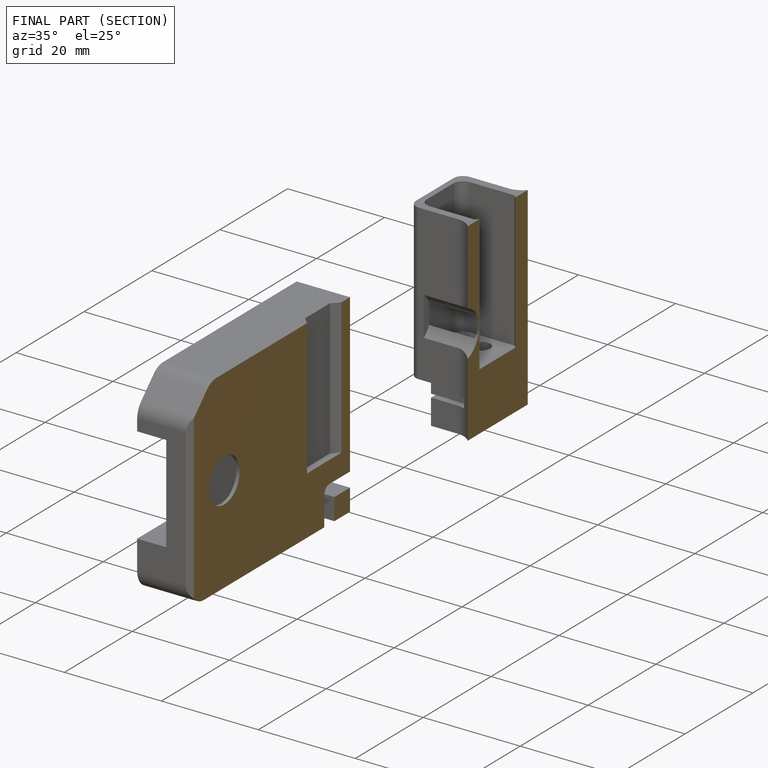
[diagram: finished part — half-section view (interior)]
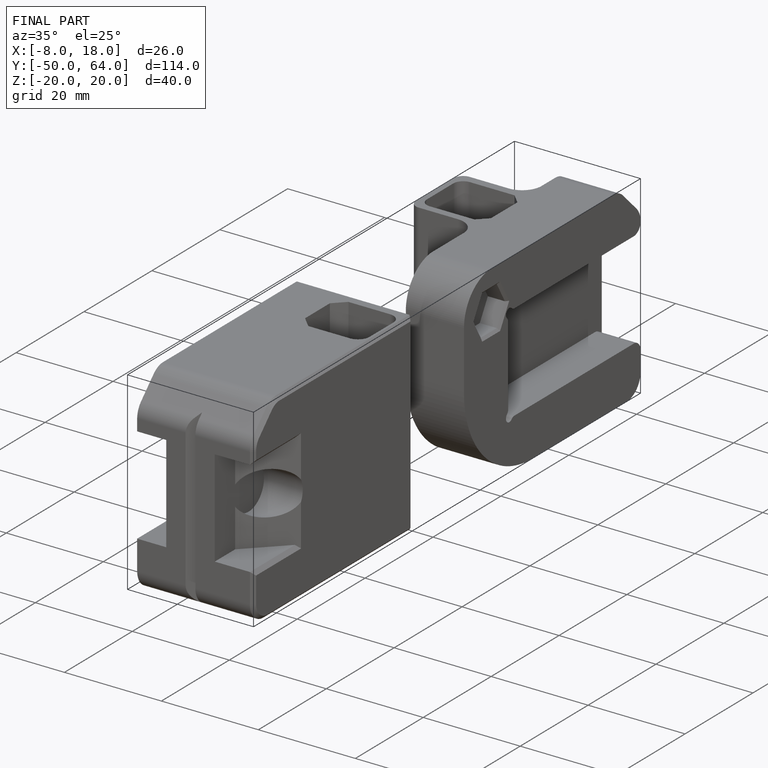
[diagram: finished part — iso view with bounding-box wireframe]
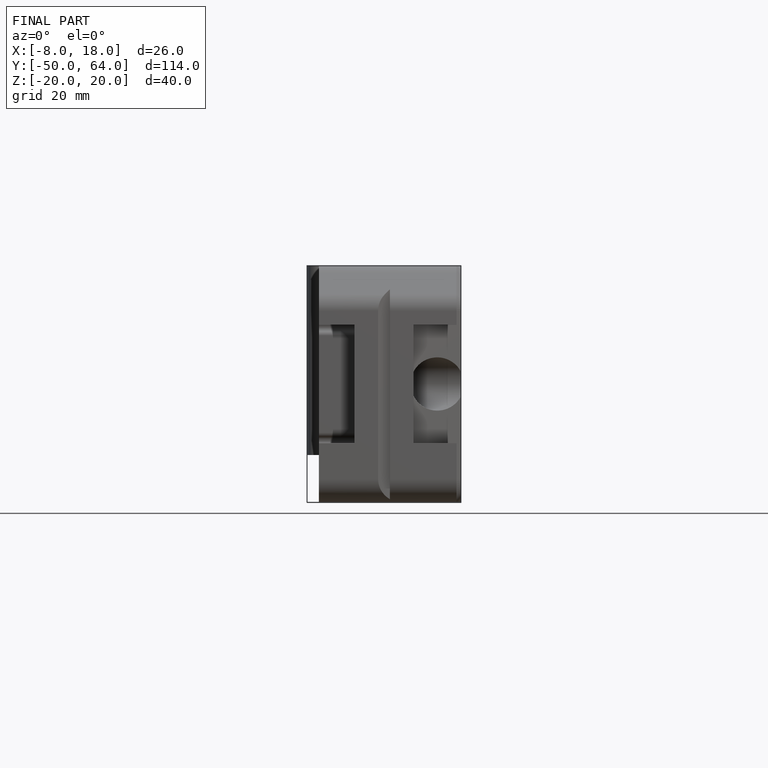
[diagram: finished part — front view with bounding-box wireframe]
